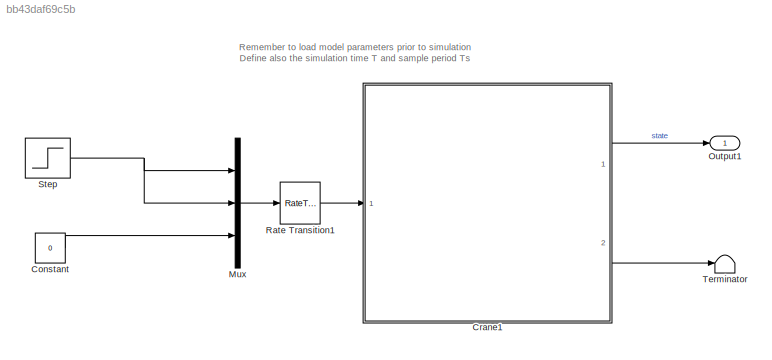
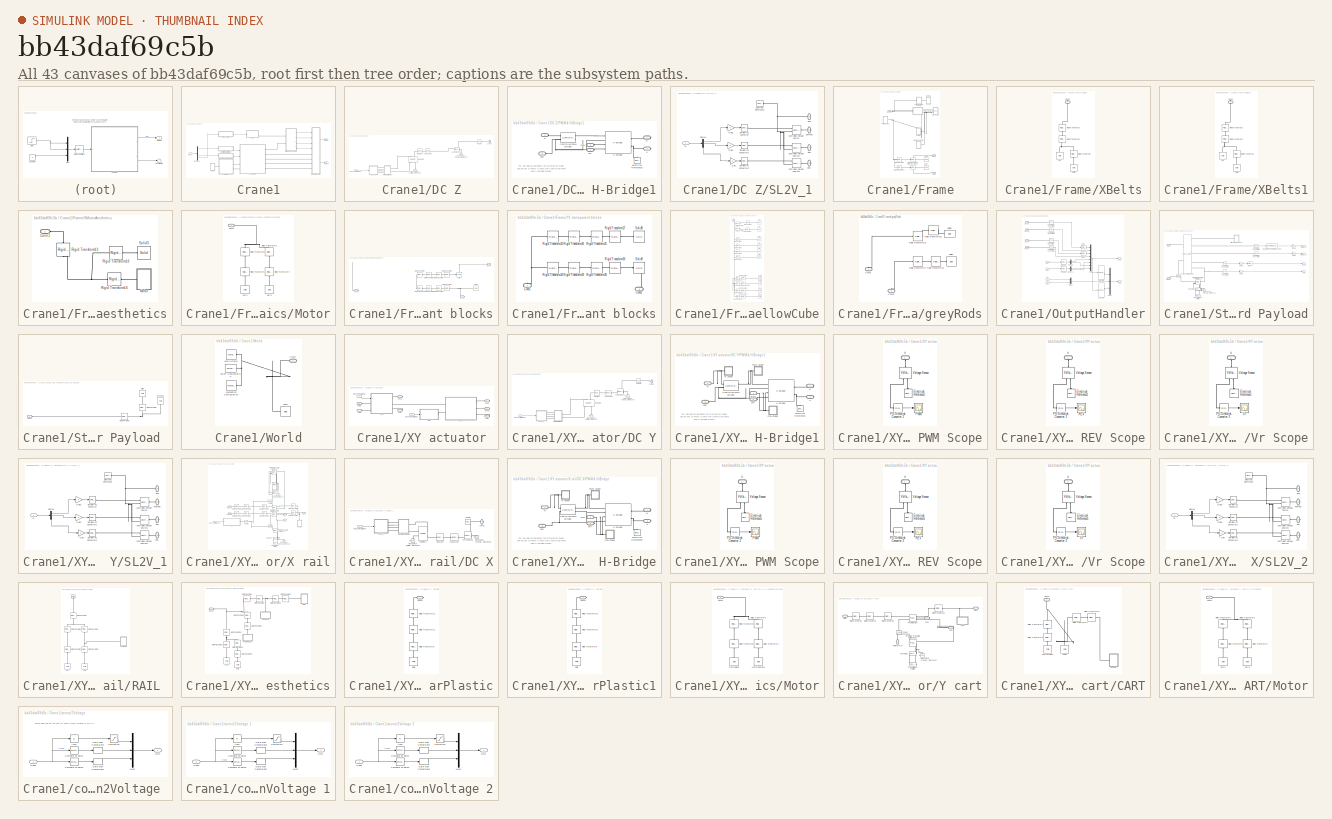
[diagram: thumbnail index - all 43 canvases of the model, root first then tree order]
MODEL slx_bb43daf69c5b
KIND model
CONFIG AbsTol = auto
CONFIG FixedStep = auto
CONFIG MaxStep = auto
CONFIG MinStep = auto
CONFIG RelTol = 1e-3
CONFIG SampleTimeConstraint = Unconstrained
CONFIG Solver = ode15s
CONFIG SolverMode = Auto
CONFIG SolverName = ode15s
CONFIG StartTime = 0.0
CONFIG StopTime = T
BLOCK [Constant] Constant
  Value = 0
BLOCK [SubSystem] Crane1
  Ports = [1, 2]
  RequestExecContextInheritance = off
  Variant = off
BLOCK [SubSystem] Crane1/DC Z
  Ports = [1, 0, 0, 0, 0, 0, 1]
  RequestExecContextInheritance = off
  Variant = off
BLOCK [Reference] Crane1/DC Z/ Lead Screw  REF=fl_lib/Mechanical/Mechanisms/Wheel and Axle
  Ports = [0, 0, 0, 0, 0, 1, 1]
  SourceBlock = fl_lib/Mechanical/Mechanisms/Wheel and Axle
  SourceType = Wheel and Axle
BLOCK [PMIOPort] Crane1/DC Z/Conn1
  Port = 1
  Side = Right
BLOCK [Reference] Crane1/DC Z/DC Motor2  REF=elec_lib/Actuators & Drivers/Rotational Actuators/DC Motor
  Ports = [0, 0, 0, 0, 0, 2, 2]
  SourceBlock = elec_lib/Actuators & Drivers/Rotational Actuators/DC Motor
  SourceType = DC Motor
BLOCK [Inport] Crane1/DC Z/DCZcontrolSignal
  IconDisplay = Port number
BLOCK [Reference] Crane1/DC Z/Force Sensor  REF=fl_lib/Mechanical/Mechanical Sensors/Ideal Force Sensor
  Ports = [0, 0, 0, 0, 0, 1, 2]
  SourceBlock = fl_lib/Mechanical/Mechanical Sensors/Ideal Force Sensor
  SourceType = Ideal Force Sensor
BLOCK [Reference] Crane1/DC Z/Gear Box  REF=fl_lib/Mechanical/Mechanisms/Gear Box
  Ports = [0, 0, 0, 0, 0, 1, 1]
  SourceBlock = fl_lib/Mechanical/Mechanisms/Gear Box
  SourceType = Gear Box
  Tag = Factory Generic
BLOCK [Reference] Crane1/DC Z/Mechanical Rotational Reference1  REF=fl_lib/Mechanical/Rotational Elements/Mechanical
Rotational Reference
  Ports = [0, 0, 0, 0, 0, 1]
  SourceBlock = fl_lib/Mechanical/Rotational Elements/Mechanical\nRotational Reference
  SourceType = Mechanical\nRotational Reference
BLOCK [Reference] Crane1/DC Z/Mechanical Translational Reference4  REF=fl_lib/Mechanical/Translational
Elements/Mechanical
Translational
Reference
  Ports = [0, 0, 0, 0, 0, 1]
  SourceBlock = fl_lib/Mechanical/Translational\nElements/Mechanical\nTranslational\nReference
  SourceType = Mechanical\nTranslational\nReference
BLOCK [Reference] Crane1/DC Z/PS Gain  REF=fl_lib/Physical Signals/Functions/PS Gain
  Ports = [0, 0, 0, 0, 0, 1, 1]
  SourceBlock = fl_lib/Physical Signals/Functions/PS Gain
  SourceType = PS Gain
BLOCK [SubSystem] Crane1/DC Z/PWM & H-Bridge1
  Ports = [0, 0, 0, 0, 0, 4, 2]
  RequestExecContextInheritance = off
  Variant = off
BLOCK [Reference] Crane1/DC Z/PWM & H-Bridge1/Controlled PWM Voltage  REF=elec_lib/Actuators & Drivers/Drivers/Controlled PWM
Voltage
  Ports = [0, 0, 0, 0, 0, 2, 2]
  SourceBlock = elec_lib/Actuators & Drivers/Drivers/Controlled PWM\nVoltage
  SourceType = Controlled PWM\nVoltage
BLOCK [Reference] Crane1/DC Z/PWM & H-Bridge1/Electrical Reference2  REF=fl_lib/Electrical/Electrical Elements/Electrical Reference
  Ports = [0, 0, 0, 0, 0, 1]
  SourceBlock = fl_lib/Electrical/Electrical Elements/Electrical Reference
  SourceType = Electrical Reference
BLOCK [Reference] Crane1/DC Z/PWM & H-Bridge1/H-Bridge  REF=elec_lib/Actuators & Drivers/Drivers/H-Bridge
  Ports = [0, 0, 0, 0, 0, 4, 2]
  SourceBlock = elec_lib/Actuators & Drivers/Drivers/H-Bridge
  SourceType = H-Bridge
BLOCK [PMIOPort] Crane1/DC Z/PWM & H-Bridge1/REV
  Port = 4
  Side = Left
BLOCK [PMIOPort] Crane1/DC Z/PWM & H-Bridge1/V+
  Port = 1
  Side = Right
BLOCK [PMIOPort] Crane1/DC Z/PWM & H-Bridge1/V-
  Port = 2
  Side = Right
BLOCK [PMIOPort] Crane1/DC Z/PWM & H-Bridge1/Vr
  Port = 3
  Side = Left
BLOCK [PMIOPort] Crane1/DC Z/PWM & H-Bridge1/brk 
  Port = 5
  Side = Left
BLOCK [PMIOPort] Crane1/DC Z/PWM & H-Bridge1/gnd 
  Port = 6
  Side = Left
BLOCK [SubSystem] Crane1/DC Z/SL2V_1
  Ports = [1, 0, 0, 0, 0, 0, 4]
  RequestExecContextInheritance = off
  Variant = off
BLOCK [PMIOPort] Crane1/DC Z/SL2V_1/BRK
  Port = 3
  Side = Right
BLOCK [Reference] Crane1/DC Z/SL2V_1/Controlled Voltage Source  REF=fl_lib/Electrical/Electrical Sources/Controlled Voltage
Source
  Ports = [0, 0, 0, 0, 0, 1, 2]
  SourceBlock = fl_lib/Electrical/Electrical Sources/Controlled Voltage\nSource
  SourceType = Controlled Voltage\nSource
BLOCK [Reference] Crane1/DC Z/SL2V_1/Controlled Voltage Source1  REF=fl_lib/Electrical/Electrical Sources/Controlled Voltage
Source
  Ports = [0, 0, 0, 0, 0, 1, 2]
  SourceBlock = fl_lib/Electrical/Electrical Sources/Controlled Voltage\nSource
  SourceType = Controlled Voltage\nSource
BLOCK [Reference] Crane1/DC Z/SL2V_1/Controlled Voltage Source2  REF=fl_lib/Electrical/Electrical Sources/Controlled Voltage
Source
  Ports = [0, 0, 0, 0, 0, 1, 2]
  SourceBlock = fl_lib/Electrical/Electrical Sources/Controlled Voltage\nSource
  SourceType = Controlled Voltage\nSource
BLOCK [Demux] Crane1/DC Z/SL2V_1/Demux
  DisplayOption = bar
  Outputs = 3
  Ports = [1, 3]
BLOCK [Reference] Crane1/DC Z/SL2V_1/Electrical Reference  REF=fl_lib/Electrical/Electrical Elements/Electrical Reference
  Ports = [0, 0, 0, 0, 0, 1]
  SourceBlock = fl_lib/Electrical/Electrical Elements/Electrical Reference
  SourceType = Electrical Reference
BLOCK [Gain] Crane1/DC Z/SL2V_1/Gain
  Gain = 5
  OutDataTypeStr = Inherit: Inherit via internal rule
  ParamDataTypeStr = Inherit: Inherit via internal rule
  SaturateOnIntegerOverflow = off
BLOCK [Gain] Crane1/DC Z/SL2V_1/Gain1
  Gain = 5
  OutDataTypeStr = Inherit: Inherit via internal rule
  ParamDataTypeStr = Inherit: Inherit via internal rule
  SaturateOnIntegerOverflow = off
BLOCK [Gain] Crane1/DC Z/SL2V_1/Gain2
  Gain = 5
  OutDataTypeStr = Inherit: Inherit via internal rule
  ParamDataTypeStr = Inherit: Inherit via internal rule
  SaturateOnIntegerOverflow = off
BLOCK [PMIOPort] Crane1/DC Z/SL2V_1/Rev
  Port = 2
  Side = Right
BLOCK [Inport] Crane1/DC Z/SL2V_1/SL
  IconDisplay = Port number
BLOCK [Reference] Crane1/DC Z/SL2V_1/Simulink-PS Converter  REF=nesl_utility/Simulink-PS
Converter
  Ports = [1, 0, 0, 0, 0, 0, 1]
  SourceBlock = nesl_utility/Simulink-PS\nConverter
  SourceType = Simulink-PS\nConverter
BLOCK [Reference] Crane1/DC Z/SL2V_1/Simulink-PS Converter1  REF=nesl_utility/Simulink-PS
Converter
  Ports = [1, 0, 0, 0, 0, 0, 1]
  SourceBlock = nesl_utility/Simulink-PS\nConverter
  SourceType = Simulink-PS\nConverter
BLOCK [Reference] Crane1/DC Z/SL2V_1/Simulink-PS Converter2  REF=nesl_utility/Simulink-PS
Converter
  Ports = [1, 0, 0, 0, 0, 0, 1]
  SourceBlock = nesl_utility/Simulink-PS\nConverter
  SourceType = Simulink-PS\nConverter
BLOCK [PMIOPort] Crane1/DC Z/SL2V_1/gnd 
  Port = 4
  Side = Right
BLOCK [PMIOPort] Crane1/DC Z/SL2V_1/pwmRef
  Port = 1
  Side = Right
BLOCK [Demux] Crane1/Demux2
  DisplayOption = bar
  Outputs = 3
  Ports = [1, 3]
BLOCK [SubSystem] Crane1/Frame
  Ports = [0, 0, 0, 0, 0, 1, 2]
  RequestExecContextInheritance = off
  Variant = off
BLOCK [PMIOPort] Crane1/Frame/Conn3
  Port = 3
  Side = Left
BLOCK [PMIOPort] Crane1/Frame/LRail
  Port = 2
  Side = Right
BLOCK [PMIOPort] Crane1/Frame/RRail
  Port = 1
  Side = Right
BLOCK [Reference] Crane1/Frame/Rigid Transform10  REF=sm_lib/Frames and
Transforms/Rigid
Transform
  Ports = [0, 0, 0, 0, 0, 1, 1]
  SourceBlock = sm_lib/Frames and\nTransforms/Rigid\nTransform
  SourceType = Rigid\nTransform
BLOCK [Reference] Crane1/Frame/Rigid Transform11  REF=sm_lib/Frames and
Transforms/Rigid
Transform
  Ports = [0, 0, 0, 0, 0, 1, 1]
  SourceBlock = sm_lib/Frames and\nTransforms/Rigid\nTransform
  SourceType = Rigid\nTransform
BLOCK [Reference] Crane1/Frame/Rigid Transform12  REF=sm_lib/Frames and
Transforms/Rigid
Transform
  Ports = [0, 0, 0, 0, 0, 1, 1]
  SourceBlock = sm_lib/Frames and\nTransforms/Rigid\nTransform
  SourceType = Rigid\nTransform
BLOCK [Reference] Crane1/Frame/Rigid Transform9  REF=sm_lib/Frames and
Transforms/Rigid
Transform
  Ports = [0, 0, 0, 0, 0, 1, 1]
  SourceBlock = sm_lib/Frames and\nTransforms/Rigid\nTransform
  SourceType = Rigid\nTransform
BLOCK [Reference] Crane1/Frame/Solid6  REF=sm_lib/Body Elements/Solid
  Ports = [0, 0, 0, 0, 0, 0, 1]
  SourceBlock = sm_lib/Body Elements/Solid
  SourceType = Solid
BLOCK [Reference] Crane1/Frame/Solid7  REF=sm_lib/Body Elements/Solid
  Ports = [0, 0, 0, 0, 0, 0, 1]
  SourceBlock = sm_lib/Body Elements/Solid
  SourceType = Solid
BLOCK [SubSystem] Crane1/Frame/XBelts
  Ports = [0, 0, 0, 0, 0, 0, 1]
  RequestExecContextInheritance = off
  Variant = off
BLOCK [PMIOPort] Crane1/Frame/XBelts/Conn1
  Port = 1
  Side = Right
BLOCK [Reference] Crane1/Frame/XBelts/Rigid Transform14  REF=sm_lib/Frames and
Transforms/Rigid
Transform
  Ports = [0, 0, 0, 0, 0, 1, 1]
  SourceBlock = sm_lib/Frames and\nTransforms/Rigid\nTransform
  SourceType = Rigid\nTransform
BLOCK [Reference] Crane1/Frame/XBelts/Rigid Transform15  REF=sm_lib/Frames and
Transforms/Rigid
Transform
  Ports = [0, 0, 0, 0, 0, 1, 1]
  SourceBlock = sm_lib/Frames and\nTransforms/Rigid\nTransform
  SourceType = Rigid\nTransform
BLOCK [Reference] Crane1/Frame/XBelts/Rigid Transform19  REF=sm_lib/Frames and
Transforms/Rigid
Transform
  Ports = [0, 0, 0, 0, 0, 1, 1]
  SourceBlock = sm_lib/Frames and\nTransforms/Rigid\nTransform
  SourceType = Rigid\nTransform
BLOCK [Reference] Crane1/Frame/XBelts/belt  REF=sm_lib/Body Elements/Solid
  Ports = [0, 0, 0, 0, 0, 0, 1]
  SourceBlock = sm_lib/Body Elements/Solid
  SourceType = Solid
BLOCK [Reference] Crane1/Frame/XBelts/betl2   REF=sm_lib/Body Elements/Solid
  Ports = [0, 0, 0, 0, 0, 0, 1]
  SourceBlock = sm_lib/Body Elements/Solid
  SourceType = Solid
BLOCK [SubSystem] Crane1/Frame/XBelts1
  Ports = [0, 0, 0, 0, 0, 0, 1]
  RequestExecContextInheritance = off
  Variant = off
BLOCK [PMIOPort] Crane1/Frame/XBelts1/Conn1
  Port = 1
  Side = Right
BLOCK [Reference] Crane1/Frame/XBelts1/Rigid Transform14  REF=sm_lib/Frames and
Transforms/Rigid
Transform
  Ports = [0, 0, 0, 0, 0, 1, 1]
  SourceBlock = sm_lib/Frames and\nTransforms/Rigid\nTransform
  SourceType = Rigid\nTransform
BLOCK [Reference] Crane1/Frame/XBelts1/Rigid Transform15  REF=sm_lib/Frames and
Transforms/Rigid
Transform
  Ports = [0, 0, 0, 0, 0, 1, 1]
  SourceBlock = sm_lib/Frames and\nTransforms/Rigid\nTransform
  SourceType = Rigid\nTransform
BLOCK [Reference] Crane1/Frame/XBelts1/Rigid Transform19  REF=sm_lib/Frames and
Transforms/Rigid
Transform
  Ports = [0, 0, 0, 0, 0, 1, 1]
  SourceBlock = sm_lib/Frames and\nTransforms/Rigid\nTransform
  SourceType = Rigid\nTransform
BLOCK [Reference] Crane1/Frame/XBelts1/belt  REF=sm_lib/Body Elements/Solid
  Ports = [0, 0, 0, 0, 0, 0, 1]
  SourceBlock = sm_lib/Body Elements/Solid
  SourceType = Solid
BLOCK [Reference] Crane1/Frame/XBelts1/betl2   REF=sm_lib/Body Elements/Solid
  Ports = [0, 0, 0, 0, 0, 0, 1]
  SourceBlock = sm_lib/Body Elements/Solid
  SourceType = Solid
BLOCK [SubSystem] Crane1/Frame/XMotorAesthetics
  Ports = [0, 0, 0, 0, 0, 1]
  RequestExecContextInheritance = off
  Variant = off
BLOCK [PMIOPort] Crane1/Frame/XMotorAesthetics/Conn1
  Port = 1
  Side = Left
BLOCK [SubSystem] Crane1/Frame/XMotorAesthetics/Motor
  Ports = [0, 0, 0, 0, 0, 1]
  RequestExecContextInheritance = off
  Variant = off
BLOCK [Reference] Crane1/Frame/XMotorAesthetics/Motor/Cart2  REF=sm_lib/Body Elements/Solid
  Ports = [0, 0, 0, 0, 0, 0, 1]
  SourceBlock = sm_lib/Body Elements/Solid
  SourceType = Solid
BLOCK [Reference] Crane1/Frame/XMotorAesthetics/Motor/Cart3  REF=sm_lib/Body Elements/Solid
  Ports = [0, 0, 0, 0, 0, 0, 1]
  SourceBlock = sm_lib/Body Elements/Solid
  SourceType = Solid
BLOCK [PMIOPort] Crane1/Frame/XMotorAesthetics/Motor/Conn1
  Port = 1
  Side = Left
BLOCK [Reference] Crane1/Frame/XMotorAesthetics/Motor/Rigid Transform3  REF=sm_lib/Frames and
Transforms/Rigid
Transform
  Ports = [0, 0, 0, 0, 0, 1, 1]
  SourceBlock = sm_lib/Frames and\nTransforms/Rigid\nTransform
  SourceType = Rigid\nTransform
BLOCK [Reference] Crane1/Frame/XMotorAesthetics/Motor/Rigid Transform4  REF=sm_lib/Frames and
Transforms/Rigid
Transform
  Ports = [0, 0, 0, 0, 0, 1, 1]
  SourceBlock = sm_lib/Frames and\nTransforms/Rigid\nTransform
  SourceType = Rigid\nTransform
BLOCK [Reference] Crane1/Frame/XMotorAesthetics/Motor/Rigid Transform5  REF=sm_lib/Frames and
Transforms/Rigid
Transform
  Ports = [0, 0, 0, 0, 0, 1, 1]
  SourceBlock = sm_lib/Frames and\nTransforms/Rigid\nTransform
  SourceType = Rigid\nTransform
BLOCK [Reference] Crane1/Frame/XMotorAesthetics/Motor/Rigid Transform6  REF=sm_lib/Frames and
Transforms/Rigid
Transform
  Ports = [0, 0, 0, 0, 0, 1, 1]
  SourceBlock = sm_lib/Frames and\nTransforms/Rigid\nTransform
  SourceType = Rigid\nTransform
BLOCK [Reference] Crane1/Frame/XMotorAesthetics/Rigid Transform13  REF=sm_lib/Frames and
Transforms/Rigid
Transform
  Ports = [0, 0, 0, 0, 0, 1, 1]
  SourceBlock = sm_lib/Frames and\nTransforms/Rigid\nTransform
  SourceType = Rigid\nTransform
BLOCK [Reference] Crane1/Frame/XMotorAesthetics/Rigid Transform16  REF=sm_lib/Frames and
Transforms/Rigid
Transform
  Ports = [0, 0, 0, 0, 0, 1, 1]
  SourceBlock = sm_lib/Frames and\nTransforms/Rigid\nTransform
  SourceType = Rigid\nTransform
BLOCK [Reference] Crane1/Frame/XMotorAesthetics/Rigid Transform18  REF=sm_lib/Frames and
Transforms/Rigid
Transform
  Ports = [0, 0, 0, 0, 0, 1, 1]
  SourceBlock = sm_lib/Frames and\nTransforms/Rigid\nTransform
  SourceType = Rigid\nTransform
BLOCK [Reference] Crane1/Frame/XMotorAesthetics/Solid3  REF=sm_lib/Body Elements/Solid
  Ports = [0, 0, 0, 0, 0, 0, 1]
  SourceBlock = sm_lib/Body Elements/Solid
  SourceType = Solid
BLOCK [SubSystem] Crane1/Frame/Y0 trans[parent blocks
  Ports = [0, 0, 0, 0, 0, 1, 2]
  RequestExecContextInheritance = off
  Variant = off
BLOCK [PMIOPort] Crane1/Frame/Y0 trans[parent blocks/Conn1
  Port = 1
  Side = Right
BLOCK [PMIOPort] Crane1/Frame/Y0 trans[parent blocks/Conn2
  Port = 2
  Side = Right
BLOCK [PMIOPort] Crane1/Frame/Y0 trans[parent blocks/Conn4
  Port = 3
  Side = Left
BLOCK [Reference] Crane1/Frame/Y0 trans[parent blocks/Rigid Transform1  REF=sm_lib/Frames and
Transforms/Rigid
Transform
  Ports = [0, 0, 0, 0, 0, 1, 1]
  SourceBlock = sm_lib/Frames and\nTransforms/Rigid\nTransform
  SourceType = Rigid\nTransform
BLOCK [Reference] Crane1/Frame/Y0 trans[parent blocks/Rigid Transform2  REF=sm_lib/Frames and
Transforms/Rigid
Transform
  Ports = [0, 0, 0, 0, 0, 1, 1]
  SourceBlock = sm_lib/Frames and\nTransforms/Rigid\nTransform
  SourceType = Rigid\nTransform
BLOCK [Reference] Crane1/Frame/Y0 trans[parent blocks/Rigid Transform3  REF=sm_lib/Frames and
Transforms/Rigid
Transform
  Ports = [0, 0, 0, 0, 0, 1, 1]
  SourceBlock = sm_lib/Frames and\nTransforms/Rigid\nTransform
  SourceType = Rigid\nTransform
BLOCK [Reference] Crane1/Frame/Y0 trans[parent blocks/Rigid Transform4  REF=sm_lib/Frames and
Transforms/Rigid
Transform
  Ports = [0, 0, 0, 0, 0, 1, 1]
  SourceBlock = sm_lib/Frames and\nTransforms/Rigid\nTransform
  SourceType = Rigid\nTransform
BLOCK [Reference] Crane1/Frame/Y0 trans[parent blocks/Rigid Transform5  REF=sm_lib/Frames and
Transforms/Rigid
Transform
  Ports = [0, 0, 0, 0, 0, 1, 1]
  SourceBlock = sm_lib/Frames and\nTransforms/Rigid\nTransform
  SourceType = Rigid\nTransform
BLOCK [Reference] Crane1/Frame/Y0 trans[parent blocks/Rigid Transform6  REF=sm_lib/Frames and
Transforms/Rigid
Transform
  Ports = [0, 0, 0, 0, 0, 1, 1]
  SourceBlock = sm_lib/Frames and\nTransforms/Rigid\nTransform
  SourceType = Rigid\nTransform
BLOCK [Reference] Crane1/Frame/Y0 trans[parent blocks/Rigid Transform7  REF=sm_lib/Frames and
Transforms/Rigid
Transform
  Ports = [0, 0, 0, 0, 0, 1, 1]
  SourceBlock = sm_lib/Frames and\nTransforms/Rigid\nTransform
  SourceType = Rigid\nTransform
BLOCK [Reference] Crane1/Frame/Y0 trans[parent blocks/Rigid Transform8  REF=sm_lib/Frames and
Transforms/Rigid
Transform
  Ports = [0, 0, 0, 0, 0, 1, 1]
  SourceBlock = sm_lib/Frames and\nTransforms/Rigid\nTransform
  SourceType = Rigid\nTransform
BLOCK [Reference] Crane1/Frame/Y0 trans[parent blocks/Solid1  REF=sm_lib/Body Elements/Solid
  Ports = [0, 0, 0, 0, 0, 0, 1]
  SourceBlock = sm_lib/Body Elements/Solid
  SourceType = Solid
BLOCK [Reference] Crane1/Frame/Y0 trans[parent blocks/Solid2  REF=sm_lib/Body Elements/Solid
  Ports = [0, 0, 0, 0, 0, 0, 1]
  SourceBlock = sm_lib/Body Elements/Solid
  SourceType = Solid
BLOCK [SubSystem] Crane1/Frame/Y1 transparent blocks
  Ports = [0, 0, 0, 0, 0, 1, 1]
  RequestExecContextInheritance = off
  Variant = off
BLOCK [PMIOPort] Crane1/Frame/Y1 transparent blocks/Conn1
  Port = 1
  Side = Left
BLOCK [PMIOPort] Crane1/Frame/Y1 transparent blocks/Conn2
  Port = 2
  Side = Right
BLOCK [Reference] Crane1/Frame/Y1 transparent blocks/Rigid Transform23  REF=sm_lib/Frames and
Transforms/Rigid
Transform
  Ports = [0, 0, 0, 0, 0, 1, 1]
  SourceBlock = sm_lib/Frames and\nTransforms/Rigid\nTransform
  SourceType = Rigid\nTransform
BLOCK [Reference] Crane1/Frame/Y1 transparent blocks/Rigid Transform24  REF=sm_lib/Frames and
Transforms/Rigid
Transform
  Ports = [0, 0, 0, 0, 0, 1, 1]
  SourceBlock = sm_lib/Frames and\nTransforms/Rigid\nTransform
  SourceType = Rigid\nTransform
BLOCK [Reference] Crane1/Frame/Y1 transparent blocks/Rigid Transform25  REF=sm_lib/Frames and
Transforms/Rigid
Transform
  Ports = [0, 0, 0, 0, 0, 1, 1]
  SourceBlock = sm_lib/Frames and\nTransforms/Rigid\nTransform
  SourceType = Rigid\nTransform
BLOCK [Reference] Crane1/Frame/Y1 transparent blocks/Rigid Transform26  REF=sm_lib/Frames and
Transforms/Rigid
Transform
  Ports = [0, 0, 0, 0, 0, 1, 1]
  SourceBlock = sm_lib/Frames and\nTransforms/Rigid\nTransform
  SourceType = Rigid\nTransform
BLOCK [Reference] Crane1/Frame/Y1 transparent blocks/Rigid Transform27  REF=sm_lib/Frames and
Transforms/Rigid
Transform
  Ports = [0, 0, 0, 0, 0, 1, 1]
  SourceBlock = sm_lib/Frames and\nTransforms/Rigid\nTransform
  SourceType = Rigid\nTransform
BLOCK [Reference] Crane1/Frame/Y1 transparent blocks/Rigid Transform28  REF=sm_lib/Frames and
Transforms/Rigid
Transform
  Ports = [0, 0, 0, 0, 0, 1, 1]
  SourceBlock = sm_lib/Frames and\nTransforms/Rigid\nTransform
  SourceType = Rigid\nTransform
BLOCK [Reference] Crane1/Frame/Y1 transparent blocks/Rigid Transform29  REF=sm_lib/Frames and
Transforms/Rigid
Transform
  Ports = [0, 0, 0, 0, 0, 1, 1]
  SourceBlock = sm_lib/Frames and\nTransforms/Rigid\nTransform
  SourceType = Rigid\nTransform
BLOCK [Reference] Crane1/Frame/Y1 transparent blocks/Rigid Transform30  REF=sm_lib/Frames and
Transforms/Rigid
Transform
  Ports = [0, 0, 0, 0, 0, 1, 1]
  SourceBlock = sm_lib/Frames and\nTransforms/Rigid\nTransform
  SourceType = Rigid\nTransform
BLOCK [Reference] Crane1/Frame/Y1 transparent blocks/Solid8  REF=sm_lib/Body Elements/Solid
  Ports = [0, 0, 0, 0, 0, 0, 1]
  SourceBlock = sm_lib/Body Elements/Solid
  SourceType = Solid
BLOCK [Reference] Crane1/Frame/Y1 transparent blocks/Solid9  REF=sm_lib/Body Elements/Solid
  Ports = [0, 0, 0, 0, 0, 0, 1]
  SourceBlock = sm_lib/Body Elements/Solid
  SourceType = Solid
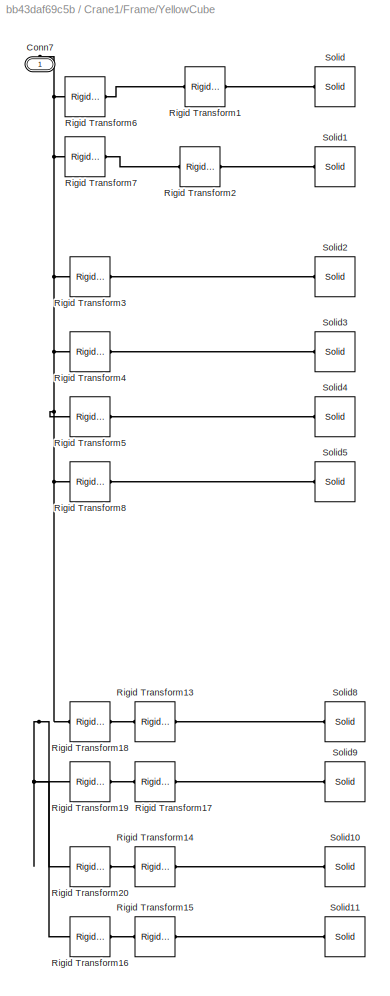
BLOCK [SubSystem] Crane1/Frame/YellowCube
  Ports = [0, 0, 0, 0, 0, 0, 1]
  RequestExecContextInheritance = off
  Variant = off
BLOCK [PMIOPort] Crane1/Frame/YellowCube/Conn7
  Port = 1
  Side = Right
BLOCK [Reference] Crane1/Frame/YellowCube/Rigid Transform1  REF=sm_lib/Frames and
Transforms/Rigid
Transform
  Ports = [0, 0, 0, 0, 0, 1, 1]
  SourceBlock = sm_lib/Frames and\nTransforms/Rigid\nTransform
  SourceType = Rigid\nTransform
BLOCK [Reference] Crane1/Frame/YellowCube/Rigid Transform13  REF=sm_lib/Frames and
Transforms/Rigid
Transform
  Ports = [0, 0, 0, 0, 0, 1, 1]
  SourceBlock = sm_lib/Frames and\nTransforms/Rigid\nTransform
  SourceType = Rigid\nTransform
BLOCK [Reference] Crane1/Frame/YellowCube/Rigid Transform14  REF=sm_lib/Frames and
Transforms/Rigid
Transform
  Ports = [0, 0, 0, 0, 0, 1, 1]
  SourceBlock = sm_lib/Frames and\nTransforms/Rigid\nTransform
  SourceType = Rigid\nTransform
BLOCK [Reference] Crane1/Frame/YellowCube/Rigid Transform15  REF=sm_lib/Frames and
Transforms/Rigid
Transform
  Ports = [0, 0, 0, 0, 0, 1, 1]
  SourceBlock = sm_lib/Frames and\nTransforms/Rigid\nTransform
  SourceType = Rigid\nTransform
BLOCK [Reference] Crane1/Frame/YellowCube/Rigid Transform16  REF=sm_lib/Frames and
Transforms/Rigid
Transform
  Ports = [0, 0, 0, 0, 0, 1, 1]
  SourceBlock = sm_lib/Frames and\nTransforms/Rigid\nTransform
  SourceType = Rigid\nTransform
BLOCK [Reference] Crane1/Frame/YellowCube/Rigid Transform17  REF=sm_lib/Frames and
Transforms/Rigid
Transform
  Ports = [0, 0, 0, 0, 0, 1, 1]
  SourceBlock = sm_lib/Frames and\nTransforms/Rigid\nTransform
  SourceType = Rigid\nTransform
BLOCK [Reference] Crane1/Frame/YellowCube/Rigid Transform18  REF=sm_lib/Frames and
Transforms/Rigid
Transform
  Ports = [0, 0, 0, 0, 0, 1, 1]
  SourceBlock = sm_lib/Frames and\nTransforms/Rigid\nTransform
  SourceType = Rigid\nTransform
BLOCK [Reference] Crane1/Frame/YellowCube/Rigid Transform19  REF=sm_lib/Frames and
Transforms/Rigid
Transform
  Ports = [0, 0, 0, 0, 0, 1, 1]
  SourceBlock = sm_lib/Frames and\nTransforms/Rigid\nTransform
  SourceType = Rigid\nTransform
BLOCK [Reference] Crane1/Frame/YellowCube/Rigid Transform2  REF=sm_lib/Frames and
Transforms/Rigid
Transform
  Ports = [0, 0, 0, 0, 0, 1, 1]
  SourceBlock = sm_lib/Frames and\nTransforms/Rigid\nTransform
  SourceType = Rigid\nTransform
BLOCK [Reference] Crane1/Frame/YellowCube/Rigid Transform20  REF=sm_lib/Frames and
Transforms/Rigid
Transform
  Ports = [0, 0, 0, 0, 0, 1, 1]
  SourceBlock = sm_lib/Frames and\nTransforms/Rigid\nTransform
  SourceType = Rigid\nTransform
BLOCK [Reference] Crane1/Frame/YellowCube/Rigid Transform3  REF=sm_lib/Frames and
Transforms/Rigid
Transform
  Ports = [0, 0, 0, 0, 0, 1, 1]
  SourceBlock = sm_lib/Frames and\nTransforms/Rigid\nTransform
  SourceType = Rigid\nTransform
BLOCK [Reference] Crane1/Frame/YellowCube/Rigid Transform4  REF=sm_lib/Frames and
Transforms/Rigid
Transform
  Ports = [0, 0, 0, 0, 0, 1, 1]
  SourceBlock = sm_lib/Frames and\nTransforms/Rigid\nTransform
  SourceType = Rigid\nTransform
BLOCK [Reference] Crane1/Frame/YellowCube/Rigid Transform5  REF=sm_lib/Frames and
Transforms/Rigid
Transform
  Ports = [0, 0, 0, 0, 0, 1, 1]
  SourceBlock = sm_lib/Frames and\nTransforms/Rigid\nTransform
  SourceType = Rigid\nTransform
BLOCK [Reference] Crane1/Frame/YellowCube/Rigid Transform6  REF=sm_lib/Frames and
Transforms/Rigid
Transform
  Ports = [0, 0, 0, 0, 0, 1, 1]
  SourceBlock = sm_lib/Frames and\nTransforms/Rigid\nTransform
  SourceType = Rigid\nTransform
BLOCK [Reference] Crane1/Frame/YellowCube/Rigid Transform7  REF=sm_lib/Frames and
Transforms/Rigid
Transform
  Ports = [0, 0, 0, 0, 0, 1, 1]
  SourceBlock = sm_lib/Frames and\nTransforms/Rigid\nTransform
  SourceType = Rigid\nTransform
BLOCK [Reference] Crane1/Frame/YellowCube/Rigid Transform8  REF=sm_lib/Frames and
Transforms/Rigid
Transform
  Ports = [0, 0, 0, 0, 0, 1, 1]
  SourceBlock = sm_lib/Frames and\nTransforms/Rigid\nTransform
  SourceType = Rigid\nTransform
BLOCK [Reference] Crane1/Frame/YellowCube/Solid  REF=sm_lib/Body Elements/Solid
  Ports = [0, 0, 0, 0, 0, 0, 1]
  SourceBlock = sm_lib/Body Elements/Solid
  SourceType = Solid
BLOCK [Reference] Crane1/Frame/YellowCube/Solid1  REF=sm_lib/Body Elements/Solid
  Ports = [0, 0, 0, 0, 0, 0, 1]
  SourceBlock = sm_lib/Body Elements/Solid
  SourceType = Solid
BLOCK [Reference] Crane1/Frame/YellowCube/Solid10  REF=sm_lib/Body Elements/Solid
  Ports = [0, 0, 0, 0, 0, 0, 1]
  SourceBlock = sm_lib/Body Elements/Solid
  SourceType = Solid
BLOCK [Reference] Crane1/Frame/YellowCube/Solid11  REF=sm_lib/Body Elements/Solid
  Ports = [0, 0, 0, 0, 0, 0, 1]
  SourceBlock = sm_lib/Body Elements/Solid
  SourceType = Solid
BLOCK [Reference] Crane1/Frame/YellowCube/Solid2  REF=sm_lib/Body Elements/Solid
  Ports = [0, 0, 0, 0, 0, 0, 1]
  SourceBlock = sm_lib/Body Elements/Solid
  SourceType = Solid
BLOCK [Reference] Crane1/Frame/YellowCube/Solid3  REF=sm_lib/Body Elements/Solid
  Ports = [0, 0, 0, 0, 0, 0, 1]
  SourceBlock = sm_lib/Body Elements/Solid
  SourceType = Solid
BLOCK [Reference] Crane1/Frame/YellowCube/Solid4  REF=sm_lib/Body Elements/Solid
  Ports = [0, 0, 0, 0, 0, 0, 1]
  SourceBlock = sm_lib/Body Elements/Solid
  SourceType = Solid
BLOCK [Reference] Crane1/Frame/YellowCube/Solid5  REF=sm_lib/Body Elements/Solid
  Ports = [0, 0, 0, 0, 0, 0, 1]
  SourceBlock = sm_lib/Body Elements/Solid
  SourceType = Solid
BLOCK [Reference] Crane1/Frame/YellowCube/Solid8  REF=sm_lib/Body Elements/Solid
  Ports = [0, 0, 0, 0, 0, 0, 1]
  SourceBlock = sm_lib/Body Elements/Solid
  SourceType = Solid
BLOCK [Reference] Crane1/Frame/YellowCube/Solid9  REF=sm_lib/Body Elements/Solid
  Ports = [0, 0, 0, 0, 0, 0, 1]
  SourceBlock = sm_lib/Body Elements/Solid
  SourceType = Solid
BLOCK [SubSystem] Crane1/Frame/greyRods
  Ports = [0, 0, 0, 0, 0, 2]
  RequestExecContextInheritance = off
  Variant = off
BLOCK [PMIOPort] Crane1/Frame/greyRods/Conn1
  Port = 1
  Side = Left
BLOCK [PMIOPort] Crane1/Frame/greyRods/Conn2
  Port = 2
  Side = Left
BLOCK [Reference] Crane1/Frame/greyRods/Rigid Transform17  REF=sm_lib/Frames and
Transforms/Rigid
Transform
  Ports = [0, 0, 0, 0, 0, 1, 1]
  SourceBlock = sm_lib/Frames and\nTransforms/Rigid\nTransform
  SourceType = Rigid\nTransform
BLOCK [Reference] Crane1/Frame/greyRods/Rigid Transform20  REF=sm_lib/Frames and
Transforms/Rigid
Transform
  Ports = [0, 0, 0, 0, 0, 1, 1]
  SourceBlock = sm_lib/Frames and\nTransforms/Rigid\nTransform
  SourceType = Rigid\nTransform
BLOCK [Reference] Crane1/Frame/greyRods/Rigid Transform21  REF=sm_lib/Frames and
Transforms/Rigid
Transform
  Ports = [0, 0, 0, 0, 0, 1, 1]
  SourceBlock = sm_lib/Frames and\nTransforms/Rigid\nTransform
  SourceType = Rigid\nTransform
BLOCK [Reference] Crane1/Frame/greyRods/Rigid Transform22  REF=sm_lib/Frames and
Transforms/Rigid
Transform
  Ports = [0, 0, 0, 0, 0, 1, 1]
  SourceBlock = sm_lib/Frames and\nTransforms/Rigid\nTransform
  SourceType = Rigid\nTransform
BLOCK [Reference] Crane1/Frame/greyRods/Solid4  REF=sm_lib/Body Elements/Solid
  Ports = [0, 0, 0, 0, 0, 0, 1]
  SourceBlock = sm_lib/Body Elements/Solid
  SourceType = Solid
BLOCK [Reference] Crane1/Frame/greyRods/Solid5  REF=sm_lib/Body Elements/Solid
  Ports = [0, 0, 0, 0, 0, 0, 1]
  SourceBlock = sm_lib/Body Elements/Solid
  SourceType = Solid
BLOCK [Inport] Crane1/Input
  IconDisplay = Port number
BLOCK [SubSystem] Crane1/OutputHandler
  Ports = [4, 2, 0, 0, 0, 4]
  RequestExecContextInheritance = off
  Variant = off
BLOCK [Bias] Crane1/OutputHandler/Bias
  Bias = xZero
  SaturateOnIntegerOverflow = off
BLOCK [Bias] Crane1/OutputHandler/Bias1
  Bias = yZero
  SaturateOnIntegerOverflow = off
BLOCK [PMIOPort] Crane1/OutputHandler/Conn1
  Port = 1
  Side = Left
BLOCK [PMIOPort] Crane1/OutputHandler/Conn2
  Port = 2
  Side = Left
BLOCK [PMIOPort] Crane1/OutputHandler/Conn3
  Port = 3
  Side = Left
BLOCK [PMIOPort] Crane1/OutputHandler/Conn4
  Port = 4
  Side = Left
BLOCK [Demux] Crane1/OutputHandler/Demux
  DisplayOption = bar
  Outputs = 2
  Ports = [1, 2]
BLOCK [Demux] Crane1/OutputHandler/Demux1
  DisplayOption = bar
  Outputs = 2
  Ports = [1, 2]
BLOCK [Inport] Crane1/OutputHandler/In1
  IconDisplay = Port number
BLOCK [Inport] Crane1/OutputHandler/In2
  IconDisplay = Port number
  Port = 2
BLOCK [Inport] Crane1/OutputHandler/In3
  IconDisplay = Port number
  Port = 3
BLOCK [Inport] Crane1/OutputHandler/In4
  IconDisplay = Port number
  Port = 4
BLOCK [Mux] Crane1/OutputHandler/Mux
  DisplayOption = bar
  Inputs = 8
  Ports = [8, 1]
BLOCK [Mux] Crane1/OutputHandler/Mux1
  DisplayOption = bar
  Inputs = 3
  Ports = [3, 1]
BLOCK [Mux] Crane1/OutputHandler/Mux2
  DisplayOption = bar
  Inputs = 2
  Ports = [2, 1]
BLOCK [Outport] Crane1/OutputHandler/Out1
  IconDisplay = Port number
BLOCK [Outport] Crane1/OutputHandler/Out2
  IconDisplay = Port number
  Port = 2
BLOCK [Reference] Crane1/OutputHandler/PS-Simulink Converter  REF=nesl_utility/PS-Simulink
Converter
  Ports = [0, 1, 0, 0, 0, 1]
  SourceBlock = nesl_utility/PS-Simulink\nConverter
  SourceType = PS-Simulink\nConverter
BLOCK [Reference] Crane1/OutputHandler/PS-Simulink Converter1  REF=nesl_utility/PS-Simulink
Converter
  Ports = [0, 1, 0, 0, 0, 1]
  SourceBlock = nesl_utility/PS-Simulink\nConverter
  SourceType = PS-Simulink\nConverter
BLOCK [Reference] Crane1/OutputHandler/PS-Simulink Converter2  REF=nesl_utility/PS-Simulink
Converter
  Ports = [0, 1, 0, 0, 0, 1]
  SourceBlock = nesl_utility/PS-Simulink\nConverter
  SourceType = PS-Simulink\nConverter
BLOCK [Reference] Crane1/OutputHandler/PS-Simulink Converter3  REF=nesl_utility/PS-Simulink
Converter
  Ports = [0, 1, 0, 0, 0, 1]
  SourceBlock = nesl_utility/PS-Simulink\nConverter
  SourceType = PS-Simulink\nConverter
BLOCK [Selector] Crane1/OutputHandler/Selector
  IndexOptions = Index vector (dialog)
  Indices = [2 3]
  InputPortWidth = 3
  OutputSizes = 1
  Ports = [1, 1]
BLOCK [Selector] Crane1/OutputHandler/Selector1
  IndexOptions = Index vector (dialog)
  Indices = [1 2]
  InputPortWidth = 3
  OutputSizes = 1
  Ports = [1, 1]
BLOCK [Selector] Crane1/OutputHandler/Selector2
  IndexOptions = Index vector (dialog)
  Indices = 1:4
  InputPortWidth = 8
  OutputSizes = 1
  Ports = [1, 1]
BLOCK [Selector] Crane1/OutputHandler/Selector3
  IndexOptions = Index vector (dialog)
  Indices = 5:8
  InputPortWidth = 8
  OutputSizes = 1
  Ports = [1, 1]
BLOCK [SubSystem] Crane1/String and Payload
  Ports = [0, 4, 0, 0, 0, 2]
  RequestExecContextInheritance = off
  Variant = off
BLOCK [Bias] Crane1/String and Payload/Bias
  Bias = zZero
  SaturateOnIntegerOverflow = off
BLOCK [PMIOPort] Crane1/String and Payload/Cart
  Port = 2
  Side = Left
BLOCK [Outport] Crane1/String and Payload/Dthetaxyz
  IconDisplay = Port number
  Port = 2
BLOCK [Gain] Crane1/String and Payload/Gain1
  Gain = [1 -1 1]
  OutDataTypeStr = Inherit: Inherit via internal rule
  ParamDataTypeStr = Inherit: Inherit via internal rule
  SaturateOnIntegerOverflow = off
BLOCK [Gain] Crane1/String and Payload/Gain2
  Gain = -1
  OutDataTypeStr = Inherit: Inherit via internal rule
  ParamDataTypeStr = Inherit: Inherit via internal rule
  SaturateOnIntegerOverflow = off
BLOCK [Gain] Crane1/String and Payload/Gain3
  Gain = -1
  OutDataTypeStr = Inherit: Inherit via internal rule
  ParamDataTypeStr = Inherit: Inherit via internal rule
  SaturateOnIntegerOverflow = off
BLOCK [Gain] Crane1/String and Payload/Gain5
  Gain = [1 -1 1]
  OutDataTypeStr = Inherit: Inherit via internal rule
  ParamDataTypeStr = Inherit: Inherit via internal rule
  SaturateOnIntegerOverflow = off
BLOCK [Reference] Crane1/String and Payload/Hard Stop1  REF=fl_lib/Mechanical/Translational
Elements/Translational Hard
Stop
  Ports = [0, 0, 0, 0, 0, 1, 1]
  SourceBlock = fl_lib/Mechanical/Translational\nElements/Translational Hard\nStop
  SourceType = Translational Hard\nStop
BLOCK [Reference] Crane1/String and Payload/Mechanical Translational Reference1  REF=fl_lib/Mechanical/Translational
Elements/Mechanical
Translational
Reference
  Ports = [0, 0, 0, 0, 0, 1]
  SourceBlock = fl_lib/Mechanical/Translational\nElements/Mechanical\nTranslational\nReference
  SourceType = Mechanical\nTranslational\nReference
BLOCK [Reference] Crane1/String and Payload/PS Add  REF=fl_lib/Physical Signals/Functions/PS Add
  Ports = [0, 0, 0, 0, 0, 2, 1]
  SourceBlock = fl_lib/Physical Signals/Functions/PS Add
  SourceType = PS Add
BLOCK [Reference] Crane1/String and Payload/PS-Simulink Converter1  REF=nesl_utility/PS-Simulink
Converter
  Ports = [0, 1, 0, 0, 0, 1]
  SourceBlock = nesl_utility/PS-Simulink\nConverter
  SourceType = PS-Simulink\nConverter
BLOCK [Reference] Crane1/String and Payload/PS-Simulink Converter2  REF=nesl_utility/PS-Simulink
Converter
  Ports = [0, 1, 0, 0, 0, 1]
  SourceBlock = nesl_utility/PS-Simulink\nConverter
  SourceType = PS-Simulink\nConverter
BLOCK [Reference] Crane1/String and Payload/PS-Simulink Converter3  REF=nesl_utility/PS-Simulink
Converter
  Ports = [0, 1, 0, 0, 0, 1]
  SourceBlock = nesl_utility/PS-Simulink\nConverter
  SourceType = PS-Simulink\nConverter
BLOCK [Reference] Crane1/String and Payload/PS-Simulink Converter4  REF=nesl_utility/PS-Simulink
Converter
  Ports = [0, 1, 0, 0, 0, 1]
  SourceBlock = nesl_utility/PS-Simulink\nConverter
  SourceType = PS-Simulink\nConverter
BLOCK [Outport] Crane1/String and Payload/PosZ 
  IconDisplay = Port number
  Port = 3
BLOCK [Reference] Crane1/String and Payload/Prismatic-Translational Interface1  REF=sm_double_wishbone_suspension_lib/Testing
Platform/Prismatic-Translational
Interface
  Ports = [0, 0, 0, 0, 0, 2, 2]
  SourceBlock = sm_double_wishbone_suspension_lib/Testing\nPlatform/Prismatic-Translational\nInterface
  SourceType = SubSystem
BLOCK [Reference] Crane1/String and Payload/Quaternions to Rotation Angles  REF=aerolibtransform2/Quaternions to Rotation Angles
  AttributesFormatString = Rotation Order: %<rotationOrder>
  Ports = [1, 1]
  SourceBlock = aerolibtransform2/Quaternions to Rotation Angles
  SourceType = Quat2Ang
BLOCK [SubSystem] Crane1/String and Payload/String and Payload 
  Ports = [0, 0, 0, 0, 0, 1]
  RequestExecContextInheritance = off
  Variant = off
BLOCK [PMIOPort] Crane1/String and Payload/String and Payload /Conn1
  Port = 1
  Side = Left
BLOCK [Reference] Crane1/String and Payload/String and Payload /Pendulum  REF=sm_lib/Body Elements/Solid
  Ports = [0, 0, 0, 0, 0, 0, 1]
  SourceBlock = sm_lib/Body Elements/Solid
  SourceType = Solid
BLOCK [Reference] Crane1/String and Payload/String and Payload /Rigid Transform1  REF=sm_lib/Frames and
Transforms/Rigid
Transform
  Ports = [0, 0, 0, 0, 0, 1, 1]
  SourceBlock = sm_lib/Frames and\nTransforms/Rigid\nTransform
  SourceType = Rigid\nTransform
BLOCK [Reference] Crane1/String and Payload/String and Payload /Rigid Transform2  REF=sm_lib/Frames and
Transforms/Rigid
Transform
  Ports = [0, 0, 0, 0, 0, 1, 1]
  SourceBlock = sm_lib/Frames and\nTransforms/Rigid\nTransform
  SourceType = Rigid\nTransform
BLOCK [Reference] Crane1/String and Payload/String and Payload /String  REF=sm_lib/Body Elements/Solid
  Ports = [0, 0, 0, 0, 0, 0, 1]
  SourceBlock = sm_lib/Body Elements/Solid
  SourceType = Solid
BLOCK [Reference] Crane1/String and Payload/Telescoping Joint  REF=sm_lib/Joints/Telescoping
Joint
  Ports = [0, 0, 0, 0, 0, 2, 6]
  SourceBlock = sm_lib/Joints/Telescoping\nJoint
  SourceType = Telescoping\nJoint
BLOCK [Reference] Crane1/String and Payload/Translational Friction  REF=fl_lib/Mechanical/Translational
Elements/Translational
Friction
  Ports = [0, 0, 0, 0, 0, 1, 1]
  SourceBlock = fl_lib/Mechanical/Translational\nElements/Translational\nFriction
  SourceType = Translational\nFriction
BLOCK [Outport] Crane1/String and Payload/VelZ
  IconDisplay = Port number
  Port = 4
BLOCK [PMIOPort] Crane1/String and Payload/Zmotor
  Port = 1
  Side = Left
BLOCK [Outport] Crane1/String and Payload/thetaxyz
  IconDisplay = Port number
BLOCK [SubSystem] Crane1/World
  Ports = [0, 0, 0, 0, 0, 0, 1]
  RequestExecContextInheritance = off
  Variant = off
BLOCK [PMIOPort] Crane1/World/Conn1
  Port = 1
  Side = Right
BLOCK [Reference] Crane1/World/Mechanism Configuration  REF=sm_lib/Utilities/Mechanism
Configuration
  Ports = [0, 0, 0, 0, 0, 0, 1]
  SourceBlock = sm_lib/Utilities/Mechanism\nConfiguration
  SourceType = Mechanism\nConfiguration
BLOCK [Reference] Crane1/World/Solver Configuration  REF=nesl_utility/Solver
Configuration
  Ports = [0, 0, 0, 0, 0, 0, 1]
  SourceBlock = nesl_utility/Solver\nConfiguration
  SourceType = Solver\nConfiguration
BLOCK [Reference] Crane1/World/World Frame  REF=sm_lib/Frames and
Transforms/World Frame
  Ports = [0, 0, 0, 0, 0, 0, 1]
  SourceBlock = sm_lib/Frames and\nTransforms/World Frame
  SourceType = World Frame
BLOCK [Reference] Crane1/World/base  REF=sm_lib/Body Elements/Solid
  Ports = [0, 0, 0, 0, 0, 0, 1]
  SourceBlock = sm_lib/Body Elements/Solid
  SourceType = Solid
BLOCK [SubSystem] Crane1/XY actuator
  Ports = [2, 0, 0, 0, 0, 2, 5]
  RequestExecContextInheritance = off
  Variant = off
BLOCK [PMIOPort] Crane1/XY actuator/Conn5
  Port = 1
  Side = Right
BLOCK [SubSystem] Crane1/XY actuator/DC Y
  Ports = [1, 0, 0, 0, 0, 0, 1]
  RequestExecContextInheritance = off
  Variant = off
BLOCK [Reference] Crane1/XY actuator/DC Y/ Lead Screw  REF=fl_lib/Mechanical/Mechanisms/Wheel and Axle
  Ports = [0, 0, 0, 0, 0, 1, 1]
  SourceBlock = fl_lib/Mechanical/Mechanisms/Wheel and Axle
  SourceType = Wheel and Axle
BLOCK [PMIOPort] Crane1/XY actuator/DC Y/Conn1
  Port = 1
  Side = Right
BLOCK [Reference] Crane1/XY actuator/DC Y/DC Motor2  REF=elec_lib/Actuators & Drivers/Rotational Actuators/DC Motor
  Ports = [0, 0, 0, 0, 0, 2, 2]
  SourceBlock = elec_lib/Actuators & Drivers/Rotational Actuators/DC Motor
  SourceType = DC Motor
BLOCK [Inport] Crane1/XY actuator/DC Y/DCYcontrolSignal
  IconDisplay = Port number
BLOCK [Reference] Crane1/XY actuator/DC Y/Force Sensor  REF=fl_lib/Mechanical/Mechanical Sensors/Ideal Force Sensor
  Ports = [0, 0, 0, 0, 0, 1, 2]
  SourceBlock = fl_lib/Mechanical/Mechanical Sensors/Ideal Force Sensor
  SourceType = Ideal Force Sensor
BLOCK [Reference] Crane1/XY actuator/DC Y/Gear Box  REF=fl_lib/Mechanical/Mechanisms/Gear Box
  Ports = [0, 0, 0, 0, 0, 1, 1]
  SourceBlock = fl_lib/Mechanical/Mechanisms/Gear Box
  SourceType = Gear Box
  Tag = Factory Generic
BLOCK [Reference] Crane1/XY actuator/DC Y/Mechanical Rotational Reference1  REF=fl_lib/Mechanical/Rotational Elements/Mechanical
Rotational Reference
  Ports = [0, 0, 0, 0, 0, 1]
  SourceBlock = fl_lib/Mechanical/Rotational Elements/Mechanical\nRotational Reference
  SourceType = Mechanical\nRotational Reference
BLOCK [Reference] Crane1/XY actuator/DC Y/Mechanical Translational Reference4  REF=fl_lib/Mechanical/Translational
Elements/Mechanical
Translational
Reference
  Ports = [0, 0, 0, 0, 0, 1]
  SourceBlock = fl_lib/Mechanical/Translational\nElements/Mechanical\nTranslational\nReference
  SourceType = Mechanical\nTranslational\nReference
BLOCK [Reference] Crane1/XY actuator/DC Y/PS Gain  REF=fl_lib/Physical Signals/Functions/PS Gain
  Ports = [0, 0, 0, 0, 0, 1, 1]
  SourceBlock = fl_lib/Physical Signals/Functions/PS Gain
  SourceType = PS Gain
BLOCK [SubSystem] Crane1/XY actuator/DC Y/PWM & H-Bridge1
  Ports = [0, 0, 0, 0, 0, 4, 2]
  RequestExecContextInheritance = off
  Variant = off
BLOCK [Reference] Crane1/XY actuator/DC Y/PWM & H-Bridge1/Controlled PWM Voltage  REF=elec_lib/Actuators & Drivers/Drivers/Controlled PWM
Voltage
  Ports = [0, 0, 0, 0, 0, 2, 2]
  SourceBlock = elec_lib/Actuators & Drivers/Drivers/Controlled PWM\nVoltage
  SourceType = Controlled PWM\nVoltage
BLOCK [Reference] Crane1/XY actuator/DC Y/PWM & H-Bridge1/Electrical Reference2  REF=fl_lib/Electrical/Electrical Elements/Electrical Reference
  Ports = [0, 0, 0, 0, 0, 1]
  SourceBlock = fl_lib/Electrical/Electrical Elements/Electrical Reference
  SourceType = Electrical Reference
BLOCK [Reference] Crane1/XY actuator/DC Y/PWM & H-Bridge1/H-Bridge  REF=elec_lib/Actuators & Drivers/Drivers/H-Bridge
  Ports = [0, 0, 0, 0, 0, 4, 2]
  SourceBlock = elec_lib/Actuators & Drivers/Drivers/H-Bridge
  SourceType = H-Bridge
BLOCK [SubSystem] Crane1/XY actuator/DC Y/PWM & H-Bridge1/PWM Scope
  Commented = on
  Ports = [0, 0, 0, 0, 0, 1]
  RequestExecContextInheritance = off
  Variant = off
BLOCK [Reference] Crane1/XY actuator/DC Y/PWM & H-Bridge1/PWM Scope/Electrical Reference1  REF=fl_lib/Electrical/Electrical Elements/Electrical Reference
  Ports = [0, 0, 0, 0, 0, 1]
  SourceBlock = fl_lib/Electrical/Electrical Elements/Electrical Reference
  SourceType = Electrical Reference
BLOCK [Reference] Crane1/XY actuator/DC Y/PWM & H-Bridge1/PWM Scope/PS-Simulink Converter 2  REF=nesl_utility/PS-Simulink
Converter
  Ports = [0, 1, 0, 0, 0, 1]
  SourceBlock = nesl_utility/PS-Simulink\nConverter
  SourceType = PS-Simulink\nConverter
BLOCK [Scope] Crane1/XY actuator/DC Y/PWM & H-Bridge1/PWM Scope/PWM
  Ports = [1]
  ScopeSpecificationString = C++SS(StrPVP('Location','[398, 140, 722, 379]'),StrPVP('Open','off'),MxPVP('AxesTitles',24,'struct(''axes1'',''%<SignalLabel>'')'),MxPVP('ScopeGraphics',28,'struct(''FigureColor'',''[0.5 0.5 0.5]'',''AxesColor'',''[0 0 0]'',''AxesTickColor'',''[1 1 1]'',''LineColors'',''[1 1 0;1 0 1;0 1 1;1 0 0;0 1 0;0 0 1]'',''LineStyles'',''-|-|-|-|-|-'',''LineWidths'',''[0.5 0.5 0.5 0.5 0.5 0.5]'',''MarkerStyle...<+296ch>
BLOCK [Reference] Crane1/XY actuator/DC Y/PWM & H-Bridge1/PWM Scope/Voltage Sensor  REF=fl_lib/Electrical/Electrical Sensors/Voltage Sensor
  Ports = [0, 0, 0, 0, 0, 1, 2]
  SourceBlock = fl_lib/Electrical/Electrical Sensors/Voltage Sensor
  SourceType = Voltage Sensor
BLOCK [PMIOPort] Crane1/XY actuator/DC Y/PWM & H-Bridge1/PWM Scope/u
  Port = 1
  Side = Left
BLOCK [PMIOPort] Crane1/XY actuator/DC Y/PWM & H-Bridge1/REV
  Port = 4
  Side = Left
BLOCK [SubSystem] Crane1/XY actuator/DC Y/PWM & H-Bridge1/REV Scope
  Commented = on
  Ports = [0, 0, 0, 0, 0, 1]
  RequestExecContextInheritance = off
  Variant = off
BLOCK [Reference] Crane1/XY actuator/DC Y/PWM & H-Bridge1/REV Scope/Electrical Reference1  REF=fl_lib/Electrical/Electrical Elements/Electrical Reference
  Ports = [0, 0, 0, 0, 0, 1]
  SourceBlock = fl_lib/Electrical/Electrical Elements/Electrical Reference
  SourceType = Electrical Reference
BLOCK [Reference] Crane1/XY actuator/DC Y/PWM & H-Bridge1/REV Scope/PS-Simulink Converter 2  REF=nesl_utility/PS-Simulink
Converter
  Ports = [0, 1, 0, 0, 0, 1]
  SourceBlock = nesl_utility/PS-Simulink\nConverter
  SourceType = PS-Simulink\nConverter
BLOCK [Scope] Crane1/XY actuator/DC Y/PWM & H-Bridge1/REV Scope/REV
  Ports = [1]
  ScopeSpecificationString = C++SS(StrPVP('Location','[197, 372, 521, 611]'),StrPVP('Open','off'),MxPVP('AxesTitles',24,'struct(''axes1'',''%<SignalLabel>'')'),StrPVP('YMin','-1'),StrPVP('YMax','6'),StrPVP('SaveName','ScopeData6'),StrPVP('DataFormat','StructureWithTime'),StrPVP('LimitDataPoints','off'),StrPVP('BlockParamSampleTime','0'),StrPVP('Decimation','1'),StrPVP('BlockParamSampleInput','off'))
BLOCK [Reference] Crane1/XY actuator/DC Y/PWM & H-Bridge1/REV Scope/Voltage Sensor  REF=fl_lib/Electrical/Electrical Sensors/Voltage Sensor
  Ports = [0, 0, 0, 0, 0, 1, 2]
  SourceBlock = fl_lib/Electrical/Electrical Sensors/Voltage Sensor
  SourceType = Voltage Sensor
BLOCK [PMIOPort] Crane1/XY actuator/DC Y/PWM & H-Bridge1/REV Scope/u
  Port = 1
  Side = Left
BLOCK [PMIOPort] Crane1/XY actuator/DC Y/PWM & H-Bridge1/V+
  Port = 1
  Side = Right
BLOCK [PMIOPort] Crane1/XY actuator/DC Y/PWM & H-Bridge1/V-
  Port = 2
  Side = Right
BLOCK [PMIOPort] Crane1/XY actuator/DC Y/PWM & H-Bridge1/Vr
  Port = 3
  Side = Left
BLOCK [SubSystem] Crane1/XY actuator/DC Y/PWM & H-Bridge1/Vr Scope
  Commented = on
  Ports = [0, 0, 0, 0, 0, 1]
  RequestExecContextInheritance = off
  Variant = off
BLOCK [Reference] Crane1/XY actuator/DC Y/PWM & H-Bridge1/Vr Scope/Electrical Reference1  REF=fl_lib/Electrical/Electrical Elements/Electrical Reference
  Ports = [0, 0, 0, 0, 0, 1]
  SourceBlock = fl_lib/Electrical/Electrical Elements/Electrical Reference
  SourceType = Electrical Reference
BLOCK [Reference] Crane1/XY actuator/DC Y/PWM & H-Bridge1/Vr Scope/PS-Simulink Converter 2  REF=nesl_utility/PS-Simulink
Converter
  Ports = [0, 1, 0, 0, 0, 1]
  SourceBlock = nesl_utility/PS-Simulink\nConverter
  SourceType = PS-Simulink\nConverter
BLOCK [Reference] Crane1/XY actuator/DC Y/PWM & H-Bridge1/Vr Scope/Voltage Sensor  REF=fl_lib/Electrical/Electrical Sensors/Voltage Sensor
  Ports = [0, 0, 0, 0, 0, 1, 2]
  SourceBlock = fl_lib/Electrical/Electrical Sensors/Voltage Sensor
  SourceType = Voltage Sensor
BLOCK [Scope] Crane1/XY actuator/DC Y/PWM & H-Bridge1/Vr Scope/Vr
  Ports = [1]
  ScopeSpecificationString = C++SS(StrPVP('Location','[398, 84, 722, 323]'),StrPVP('Open','off'),MxPVP('AxesTitles',24,'struct(''axes1'',''%<SignalLabel>'')'),MxPVP('ScopeGraphics',28,'struct(''FigureColor'',''[0.5 0.5 0.5]'',''AxesColor'',''[0 0 0]'',''AxesTickColor'',''[1 1 1]'',''LineColors'',''[1 1 0;1 0 1;0 1 1;1 0 0;0 1 0;0 0 1]'',''LineStyles'',''-|-|-|-|-|-'',''LineWidths'',''[0.5 0.5 0.5 0.5 0.5 0.5]'',''MarkerStyles...<+282ch>
BLOCK [PMIOPort] Crane1/XY actuator/DC Y/PWM & H-Bridge1/Vr Scope/u
  Port = 1
  Side = Left
BLOCK [PMIOPort] Crane1/XY actuator/DC Y/PWM & H-Bridge1/brk 
  Port = 5
  Side = Left
BLOCK [PMIOPort] Crane1/XY actuator/DC Y/PWM & H-Bridge1/gnd 
  Port = 6
  Side = Left
BLOCK [SubSystem] Crane1/XY actuator/DC Y/SL2V_1
  Ports = [1, 0, 0, 0, 0, 0, 4]
  RequestExecContextInheritance = off
  Variant = off
BLOCK [PMIOPort] Crane1/XY actuator/DC Y/SL2V_1/BRK
  Port = 3
  Side = Right
BLOCK [Reference] Crane1/XY actuator/DC Y/SL2V_1/Controlled Voltage Source  REF=fl_lib/Electrical/Electrical Sources/Controlled Voltage
Source
  Ports = [0, 0, 0, 0, 0, 1, 2]
  SourceBlock = fl_lib/Electrical/Electrical Sources/Controlled Voltage\nSource
  SourceType = Controlled Voltage\nSource
BLOCK [Reference] Crane1/XY actuator/DC Y/SL2V_1/Controlled Voltage Source1  REF=fl_lib/Electrical/Electrical Sources/Controlled Voltage
Source
  Ports = [0, 0, 0, 0, 0, 1, 2]
  SourceBlock = fl_lib/Electrical/Electrical Sources/Controlled Voltage\nSource
  SourceType = Controlled Voltage\nSource
BLOCK [Reference] Crane1/XY actuator/DC Y/SL2V_1/Controlled Voltage Source2  REF=fl_lib/Electrical/Electrical Sources/Controlled Voltage
Source
  Ports = [0, 0, 0, 0, 0, 1, 2]
  SourceBlock = fl_lib/Electrical/Electrical Sources/Controlled Voltage\nSource
  SourceType = Controlled Voltage\nSource
BLOCK [Demux] Crane1/XY actuator/DC Y/SL2V_1/Demux
  DisplayOption = bar
  Outputs = 3
  Ports = [1, 3]
BLOCK [Reference] Crane1/XY actuator/DC Y/SL2V_1/Electrical Reference  REF=fl_lib/Electrical/Electrical Elements/Electrical Reference
  Ports = [0, 0, 0, 0, 0, 1]
  SourceBlock = fl_lib/Electrical/Electrical Elements/Electrical Reference
  SourceType = Electrical Reference
BLOCK [Gain] Crane1/XY actuator/DC Y/SL2V_1/Gain
  Gain = 5
  OutDataTypeStr = Inherit: Inherit via internal rule
  ParamDataTypeStr = Inherit: Inherit via internal rule
  SaturateOnIntegerOverflow = off
BLOCK [Gain] Crane1/XY actuator/DC Y/SL2V_1/Gain1
  Gain = 5
  OutDataTypeStr = Inherit: Inherit via internal rule
  ParamDataTypeStr = Inherit: Inherit via internal rule
  SaturateOnIntegerOverflow = off
BLOCK [Gain] Crane1/XY actuator/DC Y/SL2V_1/Gain2
  Gain = 5
  OutDataTypeStr = Inherit: Inherit via internal rule
  ParamDataTypeStr = Inherit: Inherit via internal rule
  SaturateOnIntegerOverflow = off
BLOCK [PMIOPort] Crane1/XY actuator/DC Y/SL2V_1/Rev
  Port = 2
  Side = Right
BLOCK [Inport] Crane1/XY actuator/DC Y/SL2V_1/SL
  IconDisplay = Port number
BLOCK [Reference] Crane1/XY actuator/DC Y/SL2V_1/Simulink-PS Converter  REF=nesl_utility/Simulink-PS
Converter
  Ports = [1, 0, 0, 0, 0, 0, 1]
  SourceBlock = nesl_utility/Simulink-PS\nConverter
  SourceType = Simulink-PS\nConverter
BLOCK [Reference] Crane1/XY actuator/DC Y/SL2V_1/Simulink-PS Converter1  REF=nesl_utility/Simulink-PS
Converter
  Ports = [1, 0, 0, 0, 0, 0, 1]
  SourceBlock = nesl_utility/Simulink-PS\nConverter
  SourceType = Simulink-PS\nConverter
BLOCK [Reference] Crane1/XY actuator/DC Y/SL2V_1/Simulink-PS Converter2  REF=nesl_utility/Simulink-PS
Converter
  Ports = [1, 0, 0, 0, 0, 0, 1]
  SourceBlock = nesl_utility/Simulink-PS\nConverter
  SourceType = Simulink-PS\nConverter
BLOCK [PMIOPort] Crane1/XY actuator/DC Y/SL2V_1/gnd 
  Port = 4
  Side = Right
BLOCK [PMIOPort] Crane1/XY actuator/DC Y/SL2V_1/pwmRef
  Port = 1
  Side = Right
BLOCK [Inport] Crane1/XY actuator/DCXcontrolSignal
  IconDisplay = Port number
BLOCK [Inport] Crane1/XY actuator/DCYcontrolSignal
  IconDisplay = Port number
  Port = 2
BLOCK [PMIOPort] Crane1/XY actuator/LRail
  Port = 7
  Side = Left
BLOCK [PMIOPort] Crane1/XY actuator/RRail
  Port = 6
  Side = Left
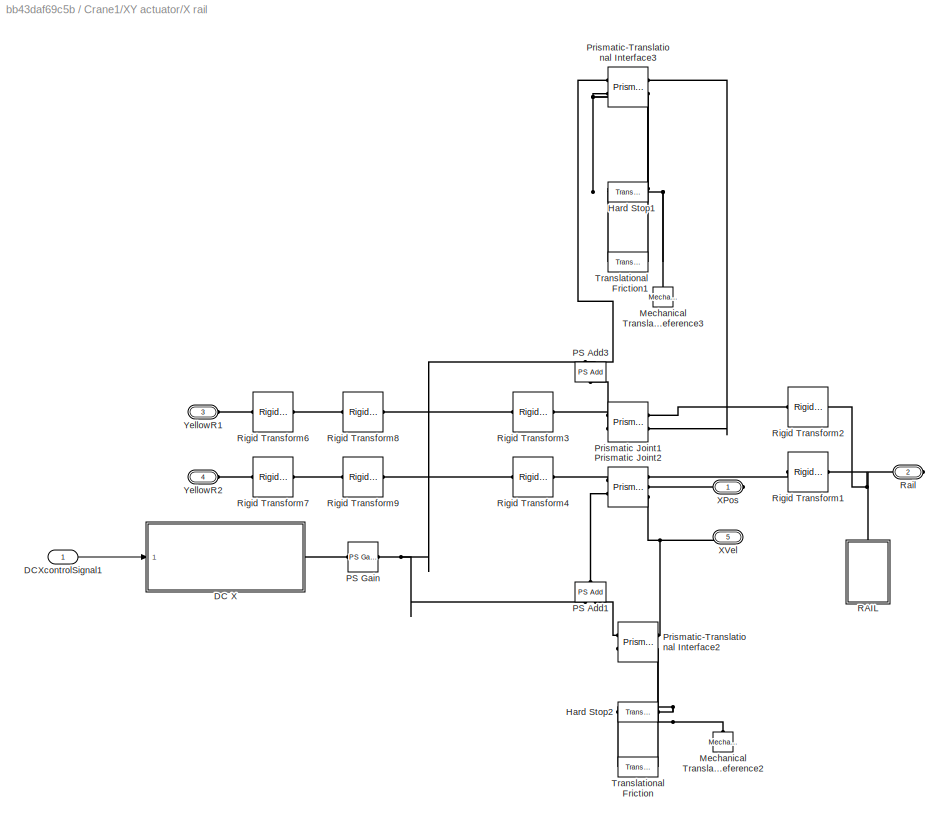
BLOCK [SubSystem] Crane1/XY actuator/X rail
  Ports = [1, 0, 0, 0, 0, 2, 3]
  RequestExecContextInheritance = off
  Variant = off
BLOCK [SubSystem] Crane1/XY actuator/X rail/DC X
  Ports = [1, 0, 0, 0, 0, 0, 1]
  RequestExecContextInheritance = off
  Variant = off
BLOCK [Reference] Crane1/XY actuator/X rail/DC X/ Lead Screw  REF=fl_lib/Mechanical/Mechanisms/Wheel and Axle
  Ports = [0, 0, 0, 0, 0, 1, 1]
  SourceBlock = fl_lib/Mechanical/Mechanisms/Wheel and Axle
  SourceType = Wheel and Axle
BLOCK [PMIOPort] Crane1/XY actuator/X rail/DC X/Conn1
  Port = 1
  Side = Right
BLOCK [Reference] Crane1/XY actuator/X rail/DC X/DC Motor2  REF=elec_lib/Actuators & Drivers/Rotational Actuators/DC Motor
  Ports = [0, 0, 0, 0, 0, 2, 2]
  SourceBlock = elec_lib/Actuators & Drivers/Rotational Actuators/DC Motor
  SourceType = DC Motor
BLOCK [Inport] Crane1/XY actuator/X rail/DC X/DCYcontrolSignal
  IconDisplay = Port number
BLOCK [Reference] Crane1/XY actuator/X rail/DC X/Force Sensor  REF=fl_lib/Mechanical/Mechanical Sensors/Ideal Force Sensor
  Ports = [0, 0, 0, 0, 0, 1, 2]
  SourceBlock = fl_lib/Mechanical/Mechanical Sensors/Ideal Force Sensor
  SourceType = Ideal Force Sensor
BLOCK [Reference] Crane1/XY actuator/X rail/DC X/Gear Box  REF=fl_lib/Mechanical/Mechanisms/Gear Box
  Ports = [0, 0, 0, 0, 0, 1, 1]
  SourceBlock = fl_lib/Mechanical/Mechanisms/Gear Box
  SourceType = Gear Box
  Tag = Factory Generic
BLOCK [Reference] Crane1/XY actuator/X rail/DC X/Mechanical Rotational Reference1  REF=fl_lib/Mechanical/Rotational Elements/Mechanical
Rotational Reference
  Ports = [0, 0, 0, 0, 0, 1]
  SourceBlock = fl_lib/Mechanical/Rotational Elements/Mechanical\nRotational Reference
  SourceType = Mechanical\nRotational Reference
BLOCK [Reference] Crane1/XY actuator/X rail/DC X/Mechanical Translational Reference4  REF=fl_lib/Mechanical/Translational
Elements/Mechanical
Translational
Reference
  Ports = [0, 0, 0, 0, 0, 1]
  SourceBlock = fl_lib/Mechanical/Translational\nElements/Mechanical\nTranslational\nReference
  SourceType = Mechanical\nTranslational\nReference
BLOCK [Reference] Crane1/XY actuator/X rail/DC X/PS Gain  REF=fl_lib/Physical Signals/Functions/PS Gain
  Ports = [0, 0, 0, 0, 0, 1, 1]
  SourceBlock = fl_lib/Physical Signals/Functions/PS Gain
  SourceType = PS Gain
BLOCK [SubSystem] Crane1/XY actuator/X rail/DC X/PWM & H-Bridge
  Ports = [0, 0, 0, 0, 0, 4, 2]
  RequestExecContextInheritance = off
  Variant = off
BLOCK [Reference] Crane1/XY actuator/X rail/DC X/PWM & H-Bridge/Controlled PWM Voltage  REF=elec_lib/Actuators & Drivers/Drivers/Controlled PWM
Voltage
  Ports = [0, 0, 0, 0, 0, 2, 2]
  SourceBlock = elec_lib/Actuators & Drivers/Drivers/Controlled PWM\nVoltage
  SourceType = Controlled PWM\nVoltage
BLOCK [Reference] Crane1/XY actuator/X rail/DC X/PWM & H-Bridge/Electrical Reference2  REF=fl_lib/Electrical/Electrical Elements/Electrical Reference
  Ports = [0, 0, 0, 0, 0, 1]
  SourceBlock = fl_lib/Electrical/Electrical Elements/Electrical Reference
  SourceType = Electrical Reference
BLOCK [Reference] Crane1/XY actuator/X rail/DC X/PWM & H-Bridge/H-Bridge  REF=elec_lib/Actuators & Drivers/Drivers/H-Bridge
  Ports = [0, 0, 0, 0, 0, 4, 2]
  SourceBlock = elec_lib/Actuators & Drivers/Drivers/H-Bridge
  SourceType = H-Bridge
BLOCK [SubSystem] Crane1/XY actuator/X rail/DC X/PWM & H-Bridge/PWM Scope
  Ports = [0, 0, 0, 0, 0, 1]
  RequestExecContextInheritance = off
  Variant = off
BLOCK [Reference] Crane1/XY actuator/X rail/DC X/PWM & H-Bridge/PWM Scope/Electrical Reference1  REF=fl_lib/Electrical/Electrical Elements/Electrical Reference
  Ports = [0, 0, 0, 0, 0, 1]
  SourceBlock = fl_lib/Electrical/Electrical Elements/Electrical Reference
  SourceType = Electrical Reference
BLOCK [Reference] Crane1/XY actuator/X rail/DC X/PWM & H-Bridge/PWM Scope/PS-Simulink Converter 2  REF=nesl_utility/PS-Simulink
Converter
  Ports = [0, 1, 0, 0, 0, 1]
  SourceBlock = nesl_utility/PS-Simulink\nConverter
  SourceType = PS-Simulink\nConverter
BLOCK [Scope] Crane1/XY actuator/X rail/DC X/PWM & H-Bridge/PWM Scope/PWM
  Ports = [1]
  ScopeSpecificationString = Simulink.scopes.TimeScopeBlockCfg('CurrentConfiguration', extmgr.ConfigurationSet(extmgr.Configuration('Core','General UI',true),extmgr.Configuration('Core','Source UI',true),extmgr.Configuration('Sources','WiredSimulink',true,'DataLoggingVariableName','ScopeData6','DataLoggingSaveFormat','StructureWithTime','DataLoggingDecimation','1','DataLoggingDecimateData',true),extmgr.Configuration('Visuals'...<+1594ch>
BLOCK [Reference] Crane1/XY actuator/X rail/DC X/PWM & H-Bridge/PWM Scope/Voltage Sensor  REF=fl_lib/Electrical/Electrical Sensors/Voltage Sensor
  Ports = [0, 0, 0, 0, 0, 1, 2]
  SourceBlock = fl_lib/Electrical/Electrical Sensors/Voltage Sensor
  SourceType = Voltage Sensor
BLOCK [PMIOPort] Crane1/XY actuator/X rail/DC X/PWM & H-Bridge/PWM Scope/u
  Port = 1
  Side = Left
BLOCK [PMIOPort] Crane1/XY actuator/X rail/DC X/PWM & H-Bridge/REV
  Port = 4
  Side = Left
BLOCK [SubSystem] Crane1/XY actuator/X rail/DC X/PWM & H-Bridge/REV Scope
  Commented = on
  Ports = [0, 0, 0, 0, 0, 1]
  RequestExecContextInheritance = off
  Variant = off
BLOCK [Reference] Crane1/XY actuator/X rail/DC X/PWM & H-Bridge/REV Scope/Electrical Reference1  REF=fl_lib/Electrical/Electrical Elements/Electrical Reference
  Ports = [0, 0, 0, 0, 0, 1]
  SourceBlock = fl_lib/Electrical/Electrical Elements/Electrical Reference
  SourceType = Electrical Reference
BLOCK [Reference] Crane1/XY actuator/X rail/DC X/PWM & H-Bridge/REV Scope/PS-Simulink Converter 2  REF=nesl_utility/PS-Simulink
Converter
  Ports = [0, 1, 0, 0, 0, 1]
  SourceBlock = nesl_utility/PS-Simulink\nConverter
  SourceType = PS-Simulink\nConverter
BLOCK [Scope] Crane1/XY actuator/X rail/DC X/PWM & H-Bridge/REV Scope/REV
  Ports = [1]
  ScopeSpecificationString = C++SS(StrPVP('Location','[197, 372, 521, 611]'),StrPVP('Open','off'),MxPVP('AxesTitles',24,'struct(''axes1'',''%<SignalLabel>'')'),StrPVP('YMin','-1'),StrPVP('YMax','6'),StrPVP('SaveName','ScopeData6'),StrPVP('DataFormat','StructureWithTime'),StrPVP('LimitDataPoints','off'),StrPVP('BlockParamSampleTime','0'),StrPVP('Decimation','1'),StrPVP('BlockParamSampleInput','off'))
BLOCK [Reference] Crane1/XY actuator/X rail/DC X/PWM & H-Bridge/REV Scope/Voltage Sensor  REF=fl_lib/Electrical/Electrical Sensors/Voltage Sensor
  Ports = [0, 0, 0, 0, 0, 1, 2]
  SourceBlock = fl_lib/Electrical/Electrical Sensors/Voltage Sensor
  SourceType = Voltage Sensor
BLOCK [PMIOPort] Crane1/XY actuator/X rail/DC X/PWM & H-Bridge/REV Scope/u
  Port = 1
  Side = Left
BLOCK [PMIOPort] Crane1/XY actuator/X rail/DC X/PWM & H-Bridge/V+
  Port = 1
  Side = Right
BLOCK [PMIOPort] Crane1/XY actuator/X rail/DC X/PWM & H-Bridge/V-
  Port = 2
  Side = Right
BLOCK [PMIOPort] Crane1/XY actuator/X rail/DC X/PWM & H-Bridge/Vr
  Port = 3
  Side = Left
BLOCK [SubSystem] Crane1/XY actuator/X rail/DC X/PWM & H-Bridge/Vr Scope
  Commented = on
  Ports = [0, 0, 0, 0, 0, 1]
  RequestExecContextInheritance = off
  Variant = off
BLOCK [Reference] Crane1/XY actuator/X rail/DC X/PWM & H-Bridge/Vr Scope/Electrical Reference1  REF=fl_lib/Electrical/Electrical Elements/Electrical Reference
  Ports = [0, 0, 0, 0, 0, 1]
  SourceBlock = fl_lib/Electrical/Electrical Elements/Electrical Reference
  SourceType = Electrical Reference
BLOCK [Reference] Crane1/XY actuator/X rail/DC X/PWM & H-Bridge/Vr Scope/PS-Simulink Converter 2  REF=nesl_utility/PS-Simulink
Converter
  Ports = [0, 1, 0, 0, 0, 1]
  SourceBlock = nesl_utility/PS-Simulink\nConverter
  SourceType = PS-Simulink\nConverter
BLOCK [Reference] Crane1/XY actuator/X rail/DC X/PWM & H-Bridge/Vr Scope/Voltage Sensor  REF=fl_lib/Electrical/Electrical Sensors/Voltage Sensor
  Ports = [0, 0, 0, 0, 0, 1, 2]
  SourceBlock = fl_lib/Electrical/Electrical Sensors/Voltage Sensor
  SourceType = Voltage Sensor
BLOCK [Scope] Crane1/XY actuator/X rail/DC X/PWM & H-Bridge/Vr Scope/Vr
  Ports = [1]
  ScopeSpecificationString = C++SS(StrPVP('Location','[398, 84, 722, 323]'),StrPVP('Open','off'),MxPVP('AxesTitles',24,'struct(''axes1'',''%<SignalLabel>'')'),MxPVP('ScopeGraphics',28,'struct(''FigureColor'',''[0.5 0.5 0.5]'',''AxesColor'',''[0 0 0]'',''AxesTickColor'',''[1 1 1]'',''LineColors'',''[1 1 0;1 0 1;0 1 1;1 0 0;0 1 0;0 0 1]'',''LineStyles'',''-|-|-|-|-|-'',''LineWidths'',''[0.5 0.5 0.5 0.5 0.5 0.5]'',''MarkerStyles...<+282ch>
BLOCK [PMIOPort] Crane1/XY actuator/X rail/DC X/PWM & H-Bridge/Vr Scope/u
  Port = 1
  Side = Left
BLOCK [PMIOPort] Crane1/XY actuator/X rail/DC X/PWM & H-Bridge/brk 
  Port = 5
  Side = Left
BLOCK [PMIOPort] Crane1/XY actuator/X rail/DC X/PWM & H-Bridge/gnd 
  Port = 6
  Side = Left
BLOCK [SubSystem] Crane1/XY actuator/X rail/DC X/SL2V_2
  Ports = [1, 0, 0, 0, 0, 0, 4]
  RequestExecContextInheritance = off
  Variant = off
BLOCK [PMIOPort] Crane1/XY actuator/X rail/DC X/SL2V_2/BRK
  Port = 3
  Side = Right
BLOCK [Reference] Crane1/XY actuator/X rail/DC X/SL2V_2/Controlled Voltage Source  REF=fl_lib/Electrical/Electrical Sources/Controlled Voltage
Source
  Ports = [0, 0, 0, 0, 0, 1, 2]
  SourceBlock = fl_lib/Electrical/Electrical Sources/Controlled Voltage\nSource
  SourceType = Controlled Voltage\nSource
BLOCK [Reference] Crane1/XY actuator/X rail/DC X/SL2V_2/Controlled Voltage Source1  REF=fl_lib/Electrical/Electrical Sources/Controlled Voltage
Source
  Ports = [0, 0, 0, 0, 0, 1, 2]
  SourceBlock = fl_lib/Electrical/Electrical Sources/Controlled Voltage\nSource
  SourceType = Controlled Voltage\nSource
BLOCK [Reference] Crane1/XY actuator/X rail/DC X/SL2V_2/Controlled Voltage Source2  REF=fl_lib/Electrical/Electrical Sources/Controlled Voltage
Source
  Ports = [0, 0, 0, 0, 0, 1, 2]
  SourceBlock = fl_lib/Electrical/Electrical Sources/Controlled Voltage\nSource
  SourceType = Controlled Voltage\nSource
BLOCK [Demux] Crane1/XY actuator/X rail/DC X/SL2V_2/Demux
  DisplayOption = bar
  Outputs = 3
  Ports = [1, 3]
BLOCK [Reference] Crane1/XY actuator/X rail/DC X/SL2V_2/Electrical Reference  REF=fl_lib/Electrical/Electrical Elements/Electrical Reference
  Ports = [0, 0, 0, 0, 0, 1]
  SourceBlock = fl_lib/Electrical/Electrical Elements/Electrical Reference
  SourceType = Electrical Reference
BLOCK [Gain] Crane1/XY actuator/X rail/DC X/SL2V_2/Gain
  Gain = 5
  OutDataTypeStr = Inherit: Inherit via internal rule
  ParamDataTypeStr = Inherit: Inherit via internal rule
  SaturateOnIntegerOverflow = off
BLOCK [Gain] Crane1/XY actuator/X rail/DC X/SL2V_2/Gain1
  Gain = 5
  OutDataTypeStr = Inherit: Inherit via internal rule
  ParamDataTypeStr = Inherit: Inherit via internal rule
  SaturateOnIntegerOverflow = off
BLOCK [Gain] Crane1/XY actuator/X rail/DC X/SL2V_2/Gain2
  Gain = 5
  OutDataTypeStr = Inherit: Inherit via internal rule
  ParamDataTypeStr = Inherit: Inherit via internal rule
  SaturateOnIntegerOverflow = off
BLOCK [PMIOPort] Crane1/XY actuator/X rail/DC X/SL2V_2/Rev
  Port = 2
  Side = Right
BLOCK [Inport] Crane1/XY actuator/X rail/DC X/SL2V_2/SL
  IconDisplay = Port number
BLOCK [Reference] Crane1/XY actuator/X rail/DC X/SL2V_2/Simulink-PS Converter  REF=nesl_utility/Simulink-PS
Converter
  Ports = [1, 0, 0, 0, 0, 0, 1]
  SourceBlock = nesl_utility/Simulink-PS\nConverter
  SourceType = Simulink-PS\nConverter
BLOCK [Reference] Crane1/XY actuator/X rail/DC X/SL2V_2/Simulink-PS Converter1  REF=nesl_utility/Simulink-PS
Converter
  Ports = [1, 0, 0, 0, 0, 0, 1]
  SourceBlock = nesl_utility/Simulink-PS\nConverter
  SourceType = Simulink-PS\nConverter
BLOCK [Reference] Crane1/XY actuator/X rail/DC X/SL2V_2/Simulink-PS Converter2  REF=nesl_utility/Simulink-PS
Converter
  Ports = [1, 0, 0, 0, 0, 0, 1]
  SourceBlock = nesl_utility/Simulink-PS\nConverter
  SourceType = Simulink-PS\nConverter
BLOCK [PMIOPort] Crane1/XY actuator/X rail/DC X/SL2V_2/gnd 
  Port = 4
  Side = Right
BLOCK [PMIOPort] Crane1/XY actuator/X rail/DC X/SL2V_2/pwmRef
  Port = 1
  Side = Right
BLOCK [Inport] Crane1/XY actuator/X rail/DCXcontrolSignal1
  IconDisplay = Port number
BLOCK [Reference] Crane1/XY actuator/X rail/Hard Stop1  REF=fl_lib/Mechanical/Translational
Elements/Translational Hard
Stop
  Ports = [0, 0, 0, 0, 0, 1, 1]
  SourceBlock = fl_lib/Mechanical/Translational\nElements/Translational Hard\nStop
  SourceType = Translational Hard\nStop
BLOCK [Reference] Crane1/XY actuator/X rail/Hard Stop2  REF=fl_lib/Mechanical/Translational
Elements/Translational Hard
Stop
  Ports = [0, 0, 0, 0, 0, 1, 1]
  SourceBlock = fl_lib/Mechanical/Translational\nElements/Translational Hard\nStop
  SourceType = Translational Hard\nStop
BLOCK [Reference] Crane1/XY actuator/X rail/Mechanical Translational Reference2  REF=fl_lib/Mechanical/Translational
Elements/Mechanical
Translational
Reference
  Ports = [0, 0, 0, 0, 0, 1]
  SourceBlock = fl_lib/Mechanical/Translational\nElements/Mechanical\nTranslational\nReference
  SourceType = Mechanical\nTranslational\nReference
BLOCK [Reference] Crane1/XY actuator/X rail/Mechanical Translational Reference3  REF=fl_lib/Mechanical/Translational
Elements/Mechanical
Translational
Reference
  Ports = [0, 0, 0, 0, 0, 1]
  SourceBlock = fl_lib/Mechanical/Translational\nElements/Mechanical\nTranslational\nReference
  SourceType = Mechanical\nTranslational\nReference
BLOCK [Reference] Crane1/XY actuator/X rail/PS Add1  REF=fl_lib/Physical Signals/Functions/PS Add
  Ports = [0, 0, 0, 0, 0, 2, 1]
  SourceBlock = fl_lib/Physical Signals/Functions/PS Add
  SourceType = PS Add
BLOCK [Reference] Crane1/XY actuator/X rail/PS Add3  REF=fl_lib/Physical Signals/Functions/PS Add
  Ports = [0, 0, 0, 0, 0, 2, 1]
  SourceBlock = fl_lib/Physical Signals/Functions/PS Add
  SourceType = PS Add
BLOCK [Reference] Crane1/XY actuator/X rail/PS Gain  REF=fl_lib/Physical Signals/Functions/PS Gain
  Ports = [0, 0, 0, 0, 0, 1, 1]
  SourceBlock = fl_lib/Physical Signals/Functions/PS Gain
  SourceType = PS Gain
BLOCK [Reference] Crane1/XY actuator/X rail/Prismatic Joint1  REF=sm_lib/Joints/Prismatic
Joint
  Ports = [0, 0, 0, 0, 0, 2, 2]
  SourceBlock = sm_lib/Joints/Prismatic\nJoint
  SourceType = Prismatic\nJoint
BLOCK [Reference] Crane1/XY actuator/X rail/Prismatic Joint2  REF=sm_lib/Joints/Prismatic
Joint
  Ports = [0, 0, 0, 0, 0, 2, 3]
  SourceBlock = sm_lib/Joints/Prismatic\nJoint
  SourceType = Prismatic\nJoint
BLOCK [Reference] Crane1/XY actuator/X rail/Prismatic-Translational Interface2  REF=sm_double_wishbone_suspension_lib/Testing
Platform/Prismatic-Translational
Interface
  Ports = [0, 0, 0, 0, 0, 2, 2]
  SourceBlock = sm_double_wishbone_suspension_lib/Testing\nPlatform/Prismatic-Translational\nInterface
  SourceType = SubSystem
BLOCK [Reference] Crane1/XY actuator/X rail/Prismatic-Translational Interface3  REF=sm_double_wishbone_suspension_lib/Testing
Platform/Prismatic-Translational
Interface
  Ports = [0, 0, 0, 0, 0, 2, 2]
  SourceBlock = sm_double_wishbone_suspension_lib/Testing\nPlatform/Prismatic-Translational\nInterface
  SourceType = SubSystem
BLOCK [SubSystem] Crane1/XY actuator/X rail/RAIL 
  Ports = [0, 0, 0, 0, 0, 0, 1]
  RequestExecContextInheritance = off
  Variant = off
BLOCK [SubSystem] Crane1/XY actuator/X rail/RAIL /Aesthetics
  Ports = [0, 0, 0, 0, 0, 1]
  RequestExecContextInheritance = off
  Variant = off
BLOCK [SubSystem] Crane1/XY actuator/X rail/RAIL /Aesthetics/ClearPlastic
  Ports = [0, 0, 0, 0, 0, 0, 1]
  RequestExecContextInheritance = off
  Variant = off
BLOCK [PMIOPort] Crane1/XY actuator/X rail/RAIL /Aesthetics/ClearPlastic/Conn1
  Port = 1
  Side = Right
BLOCK [Reference] Crane1/XY actuator/X rail/RAIL /Aesthetics/ClearPlastic/Rail2  REF=sm_lib/Body Elements/Solid
  Ports = [0, 0, 0, 0, 0, 0, 1]
  SourceBlock = sm_lib/Body Elements/Solid
  SourceType = Solid
BLOCK [Reference] Crane1/XY actuator/X rail/RAIL /Aesthetics/ClearPlastic/Rigid Transform11  REF=sm_lib/Frames and
Transforms/Rigid
Transform
  Ports = [0, 0, 0, 0, 0, 1, 1]
  SourceBlock = sm_lib/Frames and\nTransforms/Rigid\nTransform
  SourceType = Rigid\nTransform
BLOCK [Reference] Crane1/XY actuator/X rail/RAIL /Aesthetics/ClearPlastic/Rigid Transform12  REF=sm_lib/Frames and
Transforms/Rigid
Transform
  Ports = [0, 0, 0, 0, 0, 1, 1]
  SourceBlock = sm_lib/Frames and\nTransforms/Rigid\nTransform
  SourceType = Rigid\nTransform
BLOCK [Reference] Crane1/XY actuator/X rail/RAIL /Aesthetics/ClearPlastic/Rigid Transform8  REF=sm_lib/Frames and
Transforms/Rigid
Transform
  Ports = [0, 0, 0, 0, 0, 1, 1]
  SourceBlock = sm_lib/Frames and\nTransforms/Rigid\nTransform
  SourceType = Rigid\nTransform
BLOCK [SubSystem] Crane1/XY actuator/X rail/RAIL /Aesthetics/ClearPlastic1
  Ports = [0, 0, 0, 0, 0, 0, 1]
  RequestExecContextInheritance = off
  Variant = off
BLOCK [PMIOPort] Crane1/XY actuator/X rail/RAIL /Aesthetics/ClearPlastic1/Conn1
  Port = 1
  Side = Right
BLOCK [Reference] Crane1/XY actuator/X rail/RAIL /Aesthetics/ClearPlastic1/Rail2  REF=sm_lib/Body Elements/Solid
  Ports = [0, 0, 0, 0, 0, 0, 1]
  SourceBlock = sm_lib/Body Elements/Solid
  SourceType = Solid
BLOCK [Reference] Crane1/XY actuator/X rail/RAIL /Aesthetics/ClearPlastic1/Rigid Transform11  REF=sm_lib/Frames and
Transforms/Rigid
Transform
  Ports = [0, 0, 0, 0, 0, 1, 1]
  SourceBlock = sm_lib/Frames and\nTransforms/Rigid\nTransform
  SourceType = Rigid\nTransform
BLOCK [Reference] Crane1/XY actuator/X rail/RAIL /Aesthetics/ClearPlastic1/Rigid Transform12  REF=sm_lib/Frames and
Transforms/Rigid
Transform
  Ports = [0, 0, 0, 0, 0, 1, 1]
  SourceBlock = sm_lib/Frames and\nTransforms/Rigid\nTransform
  SourceType = Rigid\nTransform
BLOCK [Reference] Crane1/XY actuator/X rail/RAIL /Aesthetics/ClearPlastic1/Rigid Transform8  REF=sm_lib/Frames and
Transforms/Rigid
Transform
  Ports = [0, 0, 0, 0, 0, 1, 1]
  SourceBlock = sm_lib/Frames and\nTransforms/Rigid\nTransform
  SourceType = Rigid\nTransform
BLOCK [PMIOPort] Crane1/XY actuator/X rail/RAIL /Aesthetics/Conn1
  Port = 1
  Side = Left
BLOCK [SubSystem] Crane1/XY actuator/X rail/RAIL /Aesthetics/Motor
  Ports = [0, 0, 0, 0, 0, 1]
  RequestExecContextInheritance = off
  Variant = off
BLOCK [PMIOPort] Crane1/XY actuator/X rail/RAIL /Aesthetics/Motor/Conn1
  Port = 1
  Side = Left
BLOCK [Reference] Crane1/XY actuator/X rail/RAIL /Aesthetics/Motor/MotorGearbox  REF=sm_lib/Body Elements/Solid
  Ports = [0, 0, 0, 0, 0, 0, 1]
  SourceBlock = sm_lib/Body Elements/Solid
  SourceType = Solid
BLOCK [Reference] Crane1/XY actuator/X rail/RAIL /Aesthetics/Motor/Rigid Transform3  REF=sm_lib/Frames and
Transforms/Rigid
Transform
  Ports = [0, 0, 0, 0, 0, 1, 1]
  SourceBlock = sm_lib/Frames and\nTransforms/Rigid\nTransform
  SourceType = Rigid\nTransform
BLOCK [Reference] Crane1/XY actuator/X rail/RAIL /Aesthetics/Motor/Rigid Transform4  REF=sm_lib/Frames and
Transforms/Rigid
Transform
  Ports = [0, 0, 0, 0, 0, 1, 1]
  SourceBlock = sm_lib/Frames and\nTransforms/Rigid\nTransform
  SourceType = Rigid\nTransform
BLOCK [Reference] Crane1/XY actuator/X rail/RAIL /Aesthetics/Motor/Rigid Transform5  REF=sm_lib/Frames and
Transforms/Rigid
Transform
  Ports = [0, 0, 0, 0, 0, 1, 1]
  SourceBlock = sm_lib/Frames and\nTransforms/Rigid\nTransform
  SourceType = Rigid\nTransform
BLOCK [Reference] Crane1/XY actuator/X rail/RAIL /Aesthetics/Motor/Rigid Transform6  REF=sm_lib/Frames and
Transforms/Rigid
Transform
  Ports = [0, 0, 0, 0, 0, 1, 1]
  SourceBlock = sm_lib/Frames and\nTransforms/Rigid\nTransform
  SourceType = Rigid\nTransform
BLOCK [Reference] Crane1/XY actuator/X rail/RAIL /Aesthetics/Motor/motorBlack  REF=sm_lib/Body Elements/Solid
  Ports = [0, 0, 0, 0, 0, 0, 1]
  SourceBlock = sm_lib/Body Elements/Solid
  SourceType = Solid
BLOCK [Reference] Crane1/XY actuator/X rail/RAIL /Aesthetics/Rigid Transform10  REF=sm_lib/Frames and
Transforms/Rigid
Transform
  Ports = [0, 0, 0, 0, 0, 1, 1]
  SourceBlock = sm_lib/Frames and\nTransforms/Rigid\nTransform
  SourceType = Rigid\nTransform
BLOCK [Reference] Crane1/XY actuator/X rail/RAIL /Aesthetics/Rigid Transform11  REF=sm_lib/Frames and
Transforms/Rigid
Transform
  Ports = [0, 0, 0, 0, 0, 1, 1]
  SourceBlock = sm_lib/Frames and\nTransforms/Rigid\nTransform
  SourceType = Rigid\nTransform
BLOCK [Reference] Crane1/XY actuator/X rail/RAIL /Aesthetics/Rigid Transform12  REF=sm_lib/Frames and
Transforms/Rigid
Transform
  Ports = [0, 0, 0, 0, 0, 1, 1]
  SourceBlock = sm_lib/Frames and\nTransforms/Rigid\nTransform
  SourceType = Rigid\nTransform
BLOCK [Reference] Crane1/XY actuator/X rail/RAIL /Aesthetics/Rigid Transform13  REF=sm_lib/Frames and
Transforms/Rigid
Transform
  Ports = [0, 0, 0, 0, 0, 1, 1]
  SourceBlock = sm_lib/Frames and\nTransforms/Rigid\nTransform
  SourceType = Rigid\nTransform
BLOCK [Reference] Crane1/XY actuator/X rail/RAIL /Aesthetics/Rigid Transform14  REF=sm_lib/Frames and
Transforms/Rigid
Transform
  Ports = [0, 0, 0, 0, 0, 1, 1]
  SourceBlock = sm_lib/Frames and\nTransforms/Rigid\nTransform
  SourceType = Rigid\nTransform
BLOCK [Reference] Crane1/XY actuator/X rail/RAIL /Aesthetics/Rigid Transform15  REF=sm_lib/Frames and
Transforms/Rigid
Transform
  Ports = [0, 0, 0, 0, 0, 1, 1]
  SourceBlock = sm_lib/Frames and\nTransforms/Rigid\nTransform
  SourceType = Rigid\nTransform
BLOCK [Reference] Crane1/XY actuator/X rail/RAIL /Aesthetics/Rigid Transform4  REF=sm_lib/Frames and
Transforms/Rigid
Transform
  Ports = [0, 0, 0, 0, 0, 1, 1]
  SourceBlock = sm_lib/Frames and\nTransforms/Rigid\nTransform
  SourceType = Rigid\nTransform
BLOCK [Reference] Crane1/XY actuator/X rail/RAIL /Aesthetics/Rigid Transform7  REF=sm_lib/Frames and
Transforms/Rigid
Transform
  Ports = [0, 0, 0, 0, 0, 1, 1]
  SourceBlock = sm_lib/Frames and\nTransforms/Rigid\nTransform
  SourceType = Rigid\nTransform
BLOCK [Reference] Crane1/XY actuator/X rail/RAIL /Aesthetics/Rigid Transform8  REF=sm_lib/Frames and
Transforms/Rigid
Transform
  Ports = [0, 0, 0, 0, 0, 1, 1]
  SourceBlock = sm_lib/Frames and\nTransforms/Rigid\nTransform
  SourceType = Rigid\nTransform
BLOCK [Reference] Crane1/XY actuator/X rail/RAIL /Aesthetics/Rigid Transform9  REF=sm_lib/Frames and
Transforms/Rigid
Transform
  Ports = [0, 0, 0, 0, 0, 1, 1]
  SourceBlock = sm_lib/Frames and\nTransforms/Rigid\nTransform
  SourceType = Rigid\nTransform
BLOCK [Reference] Crane1/XY actuator/X rail/RAIL /Aesthetics/belt  REF=sm_lib/Body Elements/Solid
  Ports = [0, 0, 0, 0, 0, 0, 1]
  SourceBlock = sm_lib/Body Elements/Solid
  SourceType = Solid
BLOCK [Reference] Crane1/XY actuator/X rail/RAIL /Aesthetics/betl2   REF=sm_lib/Body Elements/Solid
  Ports = [0, 0, 0, 0, 0, 0, 1]
  SourceBlock = sm_lib/Body Elements/Solid
  SourceType = Solid
BLOCK [PMIOPort] Crane1/XY actuator/X rail/RAIL /Conn1
  Port = 1
  Side = Right
BLOCK [Reference] Crane1/XY actuator/X rail/RAIL /Rail  REF=sm_lib/Body Elements/Solid
  Ports = [0, 0, 0, 0, 0, 0, 1]
  SourceBlock = sm_lib/Body Elements/Solid
  SourceType = Solid
BLOCK [Reference] Crane1/XY actuator/X rail/RAIL /Rail1  REF=sm_lib/Body Elements/Solid
  Ports = [0, 0, 0, 0, 0, 0, 1]
  SourceBlock = sm_lib/Body Elements/Solid
  SourceType = Solid
BLOCK [Reference] Crane1/XY actuator/X rail/RAIL /Rigid Transform1  REF=sm_lib/Frames and
Transforms/Rigid
Transform
  Ports = [0, 0, 0, 0, 0, 1, 1]
  SourceBlock = sm_lib/Frames and\nTransforms/Rigid\nTransform
  SourceType = Rigid\nTransform
BLOCK [Reference] Crane1/XY actuator/X rail/RAIL /Rigid Transform2  REF=sm_lib/Frames and
Transforms/Rigid
Transform
  Ports = [0, 0, 0, 0, 0, 1, 1]
  SourceBlock = sm_lib/Frames and\nTransforms/Rigid\nTransform
  SourceType = Rigid\nTransform
BLOCK [Reference] Crane1/XY actuator/X rail/RAIL /Rigid Transform3  REF=sm_lib/Frames and
Transforms/Rigid
Transform
  Ports = [0, 0, 0, 0, 0, 1, 1]
  SourceBlock = sm_lib/Frames and\nTransforms/Rigid\nTransform
  SourceType = Rigid\nTransform
BLOCK [Reference] Crane1/XY actuator/X rail/RAIL /Rigid Transform5  REF=sm_lib/Frames and
Transforms/Rigid
Transform
  Ports = [0, 0, 0, 0, 0, 1, 1]
  SourceBlock = sm_lib/Frames and\nTransforms/Rigid\nTransform
  SourceType = Rigid\nTransform
BLOCK [Reference] Crane1/XY actuator/X rail/RAIL /Rigid Transform6  REF=sm_lib/Frames and
Transforms/Rigid
Transform
  Ports = [0, 0, 0, 0, 0, 1, 1]
  SourceBlock = sm_lib/Frames and\nTransforms/Rigid\nTransform
  SourceType = Rigid\nTransform
BLOCK [PMIOPort] Crane1/XY actuator/X rail/Rail
  Port = 2
  Side = Right
BLOCK [Reference] Crane1/XY actuator/X rail/Rigid Transform1  REF=sm_lib/Frames and
Transforms/Rigid
Transform
  Ports = [0, 0, 0, 0, 0, 1, 1]
  SourceBlock = sm_lib/Frames and\nTransforms/Rigid\nTransform
  SourceType = Rigid\nTransform
BLOCK [Reference] Crane1/XY actuator/X rail/Rigid Transform2  REF=sm_lib/Frames and
Transforms/Rigid
Transform
  Ports = [0, 0, 0, 0, 0, 1, 1]
  SourceBlock = sm_lib/Frames and\nTransforms/Rigid\nTransform
  SourceType = Rigid\nTransform
BLOCK [Reference] Crane1/XY actuator/X rail/Rigid Transform3  REF=sm_lib/Frames and
Transforms/Rigid
Transform
  Ports = [0, 0, 0, 0, 0, 1, 1]
  SourceBlock = sm_lib/Frames and\nTransforms/Rigid\nTransform
  SourceType = Rigid\nTransform
BLOCK [Reference] Crane1/XY actuator/X rail/Rigid Transform4  REF=sm_lib/Frames and
Transforms/Rigid
Transform
  Ports = [0, 0, 0, 0, 0, 1, 1]
  SourceBlock = sm_lib/Frames and\nTransforms/Rigid\nTransform
  SourceType = Rigid\nTransform
BLOCK [Reference] Crane1/XY actuator/X rail/Rigid Transform6  REF=sm_lib/Frames and
Transforms/Rigid
Transform
  Ports = [0, 0, 0, 0, 0, 1, 1]
  SourceBlock = sm_lib/Frames and\nTransforms/Rigid\nTransform
  SourceType = Rigid\nTransform
BLOCK [Reference] Crane1/XY actuator/X rail/Rigid Transform7  REF=sm_lib/Frames and
Transforms/Rigid
Transform
  Ports = [0, 0, 0, 0, 0, 1, 1]
  SourceBlock = sm_lib/Frames and\nTransforms/Rigid\nTransform
  SourceType = Rigid\nTransform
BLOCK [Reference] Crane1/XY actuator/X rail/Rigid Transform8  REF=sm_lib/Frames and
Transforms/Rigid
Transform
  Ports = [0, 0, 0, 0, 0, 1, 1]
  SourceBlock = sm_lib/Frames and\nTransforms/Rigid\nTransform
  SourceType = Rigid\nTransform
BLOCK [Reference] Crane1/XY actuator/X rail/Rigid Transform9  REF=sm_lib/Frames and
Transforms/Rigid
Transform
  Ports = [0, 0, 0, 0, 0, 1, 1]
  SourceBlock = sm_lib/Frames and\nTransforms/Rigid\nTransform
  SourceType = Rigid\nTransform
BLOCK [Reference] Crane1/XY actuator/X rail/Translational Friction  REF=fl_lib/Mechanical/Translational
Elements/Translational
Friction
  Ports = [0, 0, 0, 0, 0, 1, 1]
  SourceBlock = fl_lib/Mechanical/Translational\nElements/Translational\nFriction
  SourceType = Translational\nFriction
BLOCK [Reference] Crane1/XY actuator/X rail/Translational Friction1  REF=fl_lib/Mechanical/Translational
Elements/Translational
Friction
  Ports = [0, 0, 0, 0, 0, 1, 1]
  SourceBlock = fl_lib/Mechanical/Translational\nElements/Translational\nFriction
  SourceType = Translational\nFriction
BLOCK [PMIOPort] Crane1/XY actuator/X rail/XPos
  Port = 1
  Side = Right
BLOCK [PMIOPort] Crane1/XY actuator/X rail/XVel
  Port = 5
  Side = Right
BLOCK [PMIOPort] Crane1/XY actuator/X rail/YellowR1
  Port = 3
  Side = Left
BLOCK [PMIOPort] Crane1/XY actuator/X rail/YellowR2
  Port = 4
  Side = Left
BLOCK [PMIOPort] Crane1/XY actuator/XPos
  Port = 2
  Side = Right
BLOCK [PMIOPort] Crane1/XY actuator/XVel
  Port = 3
  Side = Right
BLOCK [SubSystem] Crane1/XY actuator/Y cart
  Ports = [0, 0, 0, 0, 0, 2, 3]
  RequestExecContextInheritance = off
  Variant = off
BLOCK [SubSystem] Crane1/XY actuator/Y cart/CART
  Ports = [0, 0, 0, 0, 0, 0, 1]
  RequestExecContextInheritance = off
  Variant = off
BLOCK [Reference] Crane1/XY actuator/Y cart/CART/BottomPlate  REF=sm_lib/Body Elements/Solid
  Ports = [0, 0, 0, 0, 0, 0, 1]
  SourceBlock = sm_lib/Body Elements/Solid
  SourceType = Solid
BLOCK [PMIOPort] Crane1/XY actuator/Y cart/CART/Conn1
  Port = 1
  Side = Right
BLOCK [SubSystem] Crane1/XY actuator/Y cart/CART/Motor
  Ports = [0, 0, 0, 0, 0, 1]
  RequestExecContextInheritance = off
  Variant = off
BLOCK [Reference] Crane1/XY actuator/Y cart/CART/Motor/Cart2  REF=sm_lib/Body Elements/Solid
  Ports = [0, 0, 0, 0, 0, 0, 1]
  SourceBlock = sm_lib/Body Elements/Solid
  SourceType = Solid
BLOCK [Reference] Crane1/XY actuator/Y cart/CART/Motor/Cart3  REF=sm_lib/Body Elements/Solid
  Ports = [0, 0, 0, 0, 0, 0, 1]
  SourceBlock = sm_lib/Body Elements/Solid
  SourceType = Solid
BLOCK [PMIOPort] Crane1/XY actuator/Y cart/CART/Motor/Conn1
  Port = 1
  Side = Left
BLOCK [Reference] Crane1/XY actuator/Y cart/CART/Motor/Rigid Transform3  REF=sm_lib/Frames and
Transforms/Rigid
Transform
  Ports = [0, 0, 0, 0, 0, 1, 1]
  SourceBlock = sm_lib/Frames and\nTransforms/Rigid\nTransform
  SourceType = Rigid\nTransform
BLOCK [Reference] Crane1/XY actuator/Y cart/CART/Motor/Rigid Transform4  REF=sm_lib/Frames and
Transforms/Rigid
Transform
  Ports = [0, 0, 0, 0, 0, 1, 1]
  SourceBlock = sm_lib/Frames and\nTransforms/Rigid\nTransform
  SourceType = Rigid\nTransform
BLOCK [Reference] Crane1/XY actuator/Y cart/CART/Motor/Rigid Transform5  REF=sm_lib/Frames and
Transforms/Rigid
Transform
  Ports = [0, 0, 0, 0, 0, 1, 1]
  SourceBlock = sm_lib/Frames and\nTransforms/Rigid\nTransform
  SourceType = Rigid\nTransform
BLOCK [Reference] Crane1/XY actuator/Y cart/CART/Motor/Rigid Transform6  REF=sm_lib/Frames and
Transforms/Rigid
Transform
  Ports = [0, 0, 0, 0, 0, 1, 1]
  SourceBlock = sm_lib/Frames and\nTransforms/Rigid\nTransform
  SourceType = Rigid\nTransform
BLOCK [Reference] Crane1/XY actuator/Y cart/CART/Rigid Transform1  REF=sm_lib/Frames and
Transforms/Rigid
Transform
  Ports = [0, 0, 0, 0, 0, 1, 1]
  SourceBlock = sm_lib/Frames and\nTransforms/Rigid\nTransform
  SourceType = Rigid\nTransform
BLOCK [Reference] Crane1/XY actuator/Y cart/CART/Rigid Transform2  REF=sm_lib/Frames and
Transforms/Rigid
Transform
  Ports = [0, 0, 0, 0, 0, 1, 1]
  SourceBlock = sm_lib/Frames and\nTransforms/Rigid\nTransform
  SourceType = Rigid\nTransform
BLOCK [Reference] Crane1/XY actuator/Y cart/CART/Rigid Transform7  REF=sm_lib/Frames and
Transforms/Rigid
Transform
  Ports = [0, 0, 0, 0, 0, 1, 1]
  SourceBlock = sm_lib/Frames and\nTransforms/Rigid\nTransform
  SourceType = Rigid\nTransform
BLOCK [Reference] Crane1/XY actuator/Y cart/CART/Rigid Transform8  REF=sm_lib/Frames and
Transforms/Rigid
Transform
  Ports = [0, 0, 0, 0, 0, 1, 1]
  SourceBlock = sm_lib/Frames and\nTransforms/Rigid\nTransform
  SourceType = Rigid\nTransform
BLOCK [Reference] Crane1/XY actuator/Y cart/CART/Tower  REF=sm_lib/Body Elements/Solid
  Ports = [0, 0, 0, 0, 0, 0, 1]
  SourceBlock = sm_lib/Body Elements/Solid
  SourceType = Solid
BLOCK [Reference] Crane1/XY actuator/Y cart/Hard Stop1  REF=fl_lib/Mechanical/Translational
Elements/Translational Hard
Stop
  Ports = [0, 0, 0, 0, 0, 1, 1]
  SourceBlock = fl_lib/Mechanical/Translational\nElements/Translational Hard\nStop
  SourceType = Translational Hard\nStop
BLOCK [Reference] Crane1/XY actuator/Y cart/Mechanical Translational Reference1  REF=fl_lib/Mechanical/Translational
Elements/Mechanical
Translational
Reference
  Ports = [0, 0, 0, 0, 0, 1]
  SourceBlock = fl_lib/Mechanical/Translational\nElements/Mechanical\nTranslational\nReference
  SourceType = Mechanical\nTranslational\nReference
BLOCK [Reference] Crane1/XY actuator/Y cart/PS Add  REF=fl_lib/Physical Signals/Functions/PS Add
  Ports = [0, 0, 0, 0, 0, 2, 1]
  SourceBlock = fl_lib/Physical Signals/Functions/PS Add
  SourceType = PS Add
BLOCK [Reference] Crane1/XY actuator/Y cart/Prismatic Joint  REF=sm_lib/Joints/Prismatic
Joint
  Ports = [0, 0, 0, 0, 0, 2, 3]
  SourceBlock = sm_lib/Joints/Prismatic\nJoint
  SourceType = Prismatic\nJoint
BLOCK [Reference] Crane1/XY actuator/Y cart/Prismatic-Translational Interface1  REF=sm_double_wishbone_suspension_lib/Testing
Platform/Prismatic-Translational
Interface
  Ports = [0, 0, 0, 0, 0, 2, 2]
  SourceBlock = sm_double_wishbone_suspension_lib/Testing\nPlatform/Prismatic-Translational\nInterface
  SourceType = SubSystem
BLOCK [PMIOPort] Crane1/XY actuator/Y cart/Rail
  Port = 3
  Side = Left
BLOCK [Reference] Crane1/XY actuator/Y cart/Rigid Transform1  REF=sm_lib/Frames and
Transforms/Rigid
Transform
  Ports = [0, 0, 0, 0, 0, 1, 1]
  SourceBlock = sm_lib/Frames and\nTransforms/Rigid\nTransform
  SourceType = Rigid\nTransform
BLOCK [Reference] Crane1/XY actuator/Y cart/Rigid Transform11  REF=sm_lib/Frames and
Transforms/Rigid
Transform
  Ports = [0, 0, 0, 0, 0, 1, 1]
  SourceBlock = sm_lib/Frames and\nTransforms/Rigid\nTransform
  SourceType = Rigid\nTransform
BLOCK [Reference] Crane1/XY actuator/Y cart/Rigid Transform5  REF=sm_lib/Frames and
Transforms/Rigid
Transform
  Ports = [0, 0, 0, 0, 0, 1, 1]
  SourceBlock = sm_lib/Frames and\nTransforms/Rigid\nTransform
  SourceType = Rigid\nTransform
BLOCK [Reference] Crane1/XY actuator/Y cart/Rigid Transform8  REF=sm_lib/Frames and
Transforms/Rigid
Transform
  Ports = [0, 0, 0, 0, 0, 1, 1]
  SourceBlock = sm_lib/Frames and\nTransforms/Rigid\nTransform
  SourceType = Rigid\nTransform
BLOCK [Reference] Crane1/XY actuator/Y cart/Translational Friction  REF=fl_lib/Mechanical/Translational
Elements/Translational
Friction
  Ports = [0, 0, 0, 0, 0, 1, 1]
  SourceBlock = fl_lib/Mechanical/Translational\nElements/Translational\nFriction
  SourceType = Translational\nFriction
BLOCK [PMIOPort] Crane1/XY actuator/Y cart/YMotorForce
  Port = 4
  Side = Left
BLOCK [PMIOPort] Crane1/XY actuator/Y cart/YPos
  Port = 1
  Side = Right
BLOCK [PMIOPort] Crane1/XY actuator/Y cart/YVel
  Port = 5
  Side = Right
BLOCK [PMIOPort] Crane1/XY actuator/Y cart/cart
  Port = 2
  Side = Right
BLOCK [PMIOPort] Crane1/XY actuator/YPos
  Port = 4
  Side = Right
BLOCK [PMIOPort] Crane1/XY actuator/YVel 
  Port = 5
  Side = Right
BLOCK [SubSystem] Crane1/control2Voltage 
  Ports = [1, 1]
  RequestExecContextInheritance = off
  Variant = off
BLOCK [Abs] Crane1/control2Voltage /Abs2
  SaturateOnIntegerOverflow = off
BLOCK [Reference] Crane1/control2Voltage /Compare To Zero3  REF=simulink/Logic and Bit
Operations/Compare
To Zero
  Ports = [1, 1]
  SourceBlock = simulink/Logic and Bit\nOperations/Compare\nTo Zero
  SourceType = Compare To Zero
BLOCK [Reference] Crane1/control2Voltage /Compare To Zero4  REF=simulink/Logic and Bit
Operations/Compare
To Zero
  Ports = [1, 1]
  SourceBlock = simulink/Logic and Bit\nOperations/Compare\nTo Zero
  SourceType = Compare To Zero
BLOCK [DataTypeConversion] Crane1/control2Voltage /Data Type Conversion2
  OutDataTypeStr = double
  RndMeth = Floor
  SaturateOnIntegerOverflow = off
BLOCK [DataTypeConversion] Crane1/control2Voltage /Data Type Conversion3
  OutDataTypeStr = double
  RndMeth = Floor
  SaturateOnIntegerOverflow = off
BLOCK [Mux] Crane1/control2Voltage /Mux2
  DisplayOption = bar
  Inputs = 3
  Ports = [3, 1]
BLOCK [Outport] Crane1/control2Voltage /Out1
  IconDisplay = Port number
BLOCK [Saturate] Crane1/control2Voltage /Saturation
  InputPortMap = u0
  LowerLimit = -1
  Ports = [1, 1]
  UpperLimit = 1
BLOCK [Inport] Crane1/control2Voltage /xInput
  IconDisplay = Port number
BLOCK [SubSystem] Crane1/control2Voltage 1
  Ports = [1, 1]
  RequestExecContextInheritance = off
  Variant = off
BLOCK [Abs] Crane1/control2Voltage 1/Abs2
  SaturateOnIntegerOverflow = off
BLOCK [Reference] Crane1/control2Voltage 1/Compare To Zero3  REF=simulink/Logic and Bit
Operations/Compare
To Zero
  Ports = [1, 1]
  SourceBlock = simulink/Logic and Bit\nOperations/Compare\nTo Zero
  SourceType = Compare To Zero
BLOCK [Reference] Crane1/control2Voltage 1/Compare To Zero4  REF=simulink/Logic and Bit
Operations/Compare
To Zero
  Ports = [1, 1]
  SourceBlock = simulink/Logic and Bit\nOperations/Compare\nTo Zero
  SourceType = Compare To Zero
BLOCK [DataTypeConversion] Crane1/control2Voltage 1/Data Type Conversion2
  OutDataTypeStr = double
  RndMeth = Floor
  SaturateOnIntegerOverflow = off
BLOCK [DataTypeConversion] Crane1/control2Voltage 1/Data Type Conversion3
  OutDataTypeStr = double
  RndMeth = Floor
  SaturateOnIntegerOverflow = off
BLOCK [Mux] Crane1/control2Voltage 1/Mux2
  DisplayOption = bar
  Inputs = 3
  Ports = [3, 1]
BLOCK [Outport] Crane1/control2Voltage 1/Out1
  IconDisplay = Port number
BLOCK [Saturate] Crane1/control2Voltage 1/Saturation
  InputPortMap = u0
  LowerLimit = -1
  Ports = [1, 1]
  UpperLimit = 1
BLOCK [Inport] Crane1/control2Voltage 1/yInput
  IconDisplay = Port number
BLOCK [SubSystem] Crane1/control2Voltage 2
  Ports = [1, 1]
  RequestExecContextInheritance = off
  Variant = off
BLOCK [Abs] Crane1/control2Voltage 2/Abs2
  SaturateOnIntegerOverflow = off
BLOCK [Reference] Crane1/control2Voltage 2/Compare To Zero3  REF=simulink/Logic and Bit
Operations/Compare
To Zero
  Ports = [1, 1]
  SourceBlock = simulink/Logic and Bit\nOperations/Compare\nTo Zero
  SourceType = Compare To Zero
BLOCK [Reference] Crane1/control2Voltage 2/Compare To Zero4  REF=simulink/Logic and Bit
Operations/Compare
To Zero
  Ports = [1, 1]
  SourceBlock = simulink/Logic and Bit\nOperations/Compare\nTo Zero
  SourceType = Compare To Zero
BLOCK [DataTypeConversion] Crane1/control2Voltage 2/Data Type Conversion2
  OutDataTypeStr = double
  RndMeth = Floor
  SaturateOnIntegerOverflow = off
BLOCK [DataTypeConversion] Crane1/control2Voltage 2/Data Type Conversion3
  OutDataTypeStr = double
  RndMeth = Floor
  SaturateOnIntegerOverflow = off
BLOCK [Mux] Crane1/control2Voltage 2/Mux2
  DisplayOption = bar
  Inputs = 3
  Ports = [3, 1]
BLOCK [Outport] Crane1/control2Voltage 2/Out1
  IconDisplay = Port number
BLOCK [Saturate] Crane1/control2Voltage 2/Saturation
  InputPortMap = u0
  LowerLimit = -1
  Ports = [1, 1]
  UpperLimit = 1
BLOCK [Inport] Crane1/control2Voltage 2/yInput
  IconDisplay = Port number
BLOCK [Outport] Crane1/state 10
  IconDisplay = Port number
  Port = 2
BLOCK [Outport] Crane1/state8 
  IconDisplay = Port number
BLOCK [Mux] Mux
  DisplayOption = bar
  Inputs = 3
  Ports = [3, 1]
BLOCK [Outport] Output1
  IconDisplay = Port number
BLOCK [RateTransition] Rate Transition1
  Deterministic = off
  Integrity = off
  OutPortSampleTime = 0
BLOCK [Step] Step
  SampleTime = Ts
  Time = 0
BLOCK [Terminator] Terminator
ANNOTATION (root): Remember to load model parameters prior to simulation Define also the simulation time T and sample period Ts
ANNOTATION Crane1/DC Z/PWM & H-Bridge1: For validation purposes the simulation mode can be set to PWM in both the Controlled PWM and H-Bridge blocks.
ANNOTATION Crane1/XY actuator/DC Y/PWM & H-Bridge1: For validation purposes the simulation mode can be set to PWM in both the Controlled PWM and H-Bridge blocks.
ANNOTATION Crane1/XY actuator/X rail/DC X/PWM & H-Bridge: For validation purposes the simulation mode can be set to PWM in both the Controlled PWM and H-Bridge blocks.
ANNOTATION Crane1/control2Voltage : Force applied on the cart at 100% motor torque is 12.9 N
LINE Constant:1 -> Mux:3
LINE Crane1/DC Z/DCZcontrolSignal:1 -> Crane1/DC Z/SL2V_1:1
LINE Crane1/DC Z/SL2V_1/Demux:1 -> Crane1/DC Z/SL2V_1/Gain2:1
LINE Crane1/DC Z/SL2V_1/Demux:2 -> Crane1/DC Z/SL2V_1/Gain1:1
LINE Crane1/DC Z/SL2V_1/Demux:3 -> Crane1/DC Z/SL2V_1/Gain:1
LINE Crane1/DC Z/SL2V_1/Gain1:1 -> Crane1/DC Z/SL2V_1/Simulink-PS Converter1:1
LINE Crane1/DC Z/SL2V_1/Gain2:1 -> Crane1/DC Z/SL2V_1/Simulink-PS Converter:1
LINE Crane1/DC Z/SL2V_1/Gain:1 -> Crane1/DC Z/SL2V_1/Simulink-PS Converter2:1
LINE Crane1/DC Z/SL2V_1/SL:1 -> Crane1/DC Z/SL2V_1/Demux:1
LINE Crane1/Demux2:1 -> Crane1/control2Voltage :1
LINE Crane1/Demux2:2 -> Crane1/control2Voltage 1:1
LINE Crane1/Demux2:3 -> Crane1/control2Voltage 2:1
LINE Crane1/Input:1 -> Crane1/Demux2:1
LINE Crane1/OutputHandler/Bias1:1 -> Crane1/OutputHandler/Mux:3
LINE Crane1/OutputHandler/Bias:1 -> Crane1/OutputHandler/Mux:1
LINE Crane1/OutputHandler/Demux1:1 -> Crane1/OutputHandler/Mux:8
LINE Crane1/OutputHandler/Demux1:2 -> Crane1/OutputHandler/Mux:6
LINE Crane1/OutputHandler/Demux:1 -> Crane1/OutputHandler/Mux:5
LINE Crane1/OutputHandler/Demux:2 -> Crane1/OutputHandler/Mux:7
LINE Crane1/OutputHandler/In1:1 -> Crane1/OutputHandler/Selector:1
LINE Crane1/OutputHandler/In2:1 -> Crane1/OutputHandler/Selector1:1
LINE Crane1/OutputHandler/In3:1 -> Crane1/OutputHandler/Mux2:1
LINE Crane1/OutputHandler/In4:1 -> Crane1/OutputHandler/Mux2:2
LINE Crane1/OutputHandler/Mux1:1 -> Crane1/OutputHandler/Out2:1
LINE Crane1/OutputHandler/Mux2:1 -> Crane1/OutputHandler/Mux1:2
NET Crane1/OutputHandler/Mux:1 -> Crane1/OutputHandler/Out1:1, Crane1/OutputHandler/Selector2:1, Crane1/OutputHandler/Selector3:1
LINE Crane1/OutputHandler/PS-Simulink Converter1:1 -> Crane1/OutputHandler/Mux:4
LINE Crane1/OutputHandler/PS-Simulink Converter2:1 -> Crane1/OutputHandler/Bias:1
LINE Crane1/OutputHandler/PS-Simulink Converter3:1 -> Crane1/OutputHandler/Mux:2
LINE Crane1/OutputHandler/PS-Simulink Converter:1 -> Crane1/OutputHandler/Bias1:1
LINE Crane1/OutputHandler/Selector1:1 -> Crane1/OutputHandler/Demux1:1
LINE Crane1/OutputHandler/Selector2:1 -> Crane1/OutputHandler/Mux1:1
LINE Crane1/OutputHandler/Selector3:1 -> Crane1/OutputHandler/Mux1:3
LINE Crane1/OutputHandler/Selector:1 -> Crane1/OutputHandler/Demux:1
LINE Crane1/OutputHandler:1 -> Crane1/state8 :1
LINE Crane1/OutputHandler:2 -> Crane1/state 10:1
LINE Crane1/String and Payload/Bias:1 -> Crane1/String and Payload/PosZ :1
LINE Crane1/String and Payload/Gain1:1 -> Crane1/String and Payload/thetaxyz:1
LINE Crane1/String and Payload/Gain2:1 -> Crane1/String and Payload/Bias:1
LINE Crane1/String and Payload/Gain3:1 -> Crane1/String and Payload/VelZ:1
LINE Crane1/String and Payload/Gain5:1 -> Crane1/String and Payload/Dthetaxyz:1
LINE Crane1/String and Payload/PS-Simulink Converter1:1 -> Crane1/String and Payload/Gain5:1
LINE Crane1/String and Payload/PS-Simulink Converter2:1 -> Crane1/String and Payload/Quaternions to Rotation Angles:1
LINE Crane1/String and Payload/PS-Simulink Converter3:1 -> Crane1/String and Payload/Gain3:1
LINE Crane1/String and Payload/PS-Simulink Converter4:1 -> Crane1/String and Payload/Gain2:1
LINE Crane1/String and Payload/Quaternions to Rotation Angles:1 -> Crane1/String and Payload/Gain1:1
LINE Crane1/String and Payload:1 -> Crane1/OutputHandler:1
LINE Crane1/String and Payload:2 -> Crane1/OutputHandler:2
LINE Crane1/String and Payload:3 -> Crane1/OutputHandler:3
LINE Crane1/String and Payload:4 -> Crane1/OutputHandler:4
LINE Crane1/XY actuator/DC Y/DCYcontrolSignal:1 -> Crane1/XY actuator/DC Y/SL2V_1:1
LINE Crane1/XY actuator/DC Y/PWM & H-Bridge1/PWM Scope/PS-Simulink Converter 2:1 -> Crane1/XY actuator/DC Y/PWM & H-Bridge1/PWM Scope/PWM:1
LINE Crane1/XY actuator/DC Y/PWM & H-Bridge1/REV Scope/PS-Simulink Converter 2:1 -> Crane1/XY actuator/DC Y/PWM & H-Bridge1/REV Scope/REV:1
LINE Crane1/XY actuator/DC Y/PWM & H-Bridge1/Vr Scope/PS-Simulink Converter 2:1 -> Crane1/XY actuator/DC Y/PWM & H-Bridge1/Vr Scope/Vr:1
LINE Crane1/XY actuator/DC Y/SL2V_1/Demux:1 -> Crane1/XY actuator/DC Y/SL2V_1/Gain2:1
LINE Crane1/XY actuator/DC Y/SL2V_1/Demux:2 -> Crane1/XY actuator/DC Y/SL2V_1/Gain1:1
LINE Crane1/XY actuator/DC Y/SL2V_1/Demux:3 -> Crane1/XY actuator/DC Y/SL2V_1/Gain:1
LINE Crane1/XY actuator/DC Y/SL2V_1/Gain1:1 -> Crane1/XY actuator/DC Y/SL2V_1/Simulink-PS Converter1:1
LINE Crane1/XY actuator/DC Y/SL2V_1/Gain2:1 -> Crane1/XY actuator/DC Y/SL2V_1/Simulink-PS Converter:1
LINE Crane1/XY actuator/DC Y/SL2V_1/Gain:1 -> Crane1/XY actuator/DC Y/SL2V_1/Simulink-PS Converter2:1
LINE Crane1/XY actuator/DC Y/SL2V_1/SL:1 -> Crane1/XY actuator/DC Y/SL2V_1/Demux:1
LINE Crane1/XY actuator/DCXcontrolSignal:1 -> Crane1/XY actuator/X rail:1
LINE Crane1/XY actuator/DCYcontrolSignal:1 -> Crane1/XY actuator/DC Y:1
LINE Crane1/XY actuator/X rail/DC X/DCYcontrolSignal:1 -> Crane1/XY actuator/X rail/DC X/SL2V_2:1
LINE Crane1/XY actuator/X rail/DC X/PWM & H-Bridge/PWM Scope/PS-Simulink Converter 2:1 -> Crane1/XY actuator/X rail/DC X/PWM & H-Bridge/PWM Scope/PWM:1
LINE Crane1/XY actuator/X rail/DC X/PWM & H-Bridge/REV Scope/PS-Simulink Converter 2:1 -> Crane1/XY actuator/X rail/DC X/PWM & H-Bridge/REV Scope/REV:1
LINE Crane1/XY actuator/X rail/DC X/PWM & H-Bridge/Vr Scope/PS-Simulink Converter 2:1 -> Crane1/XY actuator/X rail/DC X/PWM & H-Bridge/Vr Scope/Vr:1
LINE Crane1/XY actuator/X rail/DC X/SL2V_2/Demux:1 -> Crane1/XY actuator/X rail/DC X/SL2V_2/Gain2:1
LINE Crane1/XY actuator/X rail/DC X/SL2V_2/Demux:2 -> Crane1/XY actuator/X rail/DC X/SL2V_2/Gain1:1
LINE Crane1/XY actuator/X rail/DC X/SL2V_2/Demux:3 -> Crane1/XY actuator/X rail/DC X/SL2V_2/Gain:1
LINE Crane1/XY actuator/X rail/DC X/SL2V_2/Gain1:1 -> Crane1/XY actuator/X rail/DC X/SL2V_2/Simulink-PS Converter1:1
LINE Crane1/XY actuator/X rail/DC X/SL2V_2/Gain2:1 -> Crane1/XY actuator/X rail/DC X/SL2V_2/Simulink-PS Converter:1
LINE Crane1/XY actuator/X rail/DC X/SL2V_2/Gain:1 -> Crane1/XY actuator/X rail/DC X/SL2V_2/Simulink-PS Converter2:1
LINE Crane1/XY actuator/X rail/DC X/SL2V_2/SL:1 -> Crane1/XY actuator/X rail/DC X/SL2V_2/Demux:1
LINE Crane1/XY actuator/X rail/DCXcontrolSignal1:1 -> Crane1/XY actuator/X rail/DC X:1
LINE Crane1/control2Voltage /Abs2:1 -> Crane1/control2Voltage /Saturation:1
LINE Crane1/control2Voltage /Compare To Zero3:1 -> Crane1/control2Voltage /Data Type Conversion2:1
LINE Crane1/control2Voltage /Compare To Zero4:1 -> Crane1/control2Voltage /Data Type Conversion3:1
LINE Crane1/control2Voltage /Data Type Conversion2:1 -> Crane1/control2Voltage /Mux2:3
LINE Crane1/control2Voltage /Data Type Conversion3:1 -> Crane1/control2Voltage /Mux2:2
LINE Crane1/control2Voltage /Mux2:1 -> Crane1/control2Voltage /Out1:1
LINE Crane1/control2Voltage /Saturation:1 -> Crane1/control2Voltage /Mux2:1
NET Crane1/control2Voltage /xInput:1 -> Crane1/control2Voltage /Abs2:1, Crane1/control2Voltage /Compare To Zero3:1, Crane1/control2Voltage /Compare To Zero4:1
LINE Crane1/control2Voltage 1/Abs2:1 -> Crane1/control2Voltage 1/Saturation:1
LINE Crane1/control2Voltage 1/Compare To Zero3:1 -> Crane1/control2Voltage 1/Data Type Conversion2:1
LINE Crane1/control2Voltage 1/Compare To Zero4:1 -> Crane1/control2Voltage 1/Data Type Conversion3:1
LINE Crane1/control2Voltage 1/Data Type Conversion2:1 -> Crane1/control2Voltage 1/Mux2:3
LINE Crane1/control2Voltage 1/Data Type Conversion3:1 -> Crane1/control2Voltage 1/Mux2:2
LINE Crane1/control2Voltage 1/Mux2:1 -> Crane1/control2Voltage 1/Out1:1
LINE Crane1/control2Voltage 1/Saturation:1 -> Crane1/control2Voltage 1/Mux2:1
NET Crane1/control2Voltage 1/yInput:1 -> Crane1/control2Voltage 1/Abs2:1, Crane1/control2Voltage 1/Compare To Zero3:1, Crane1/control2Voltage 1/Compare To Zero4:1
LINE Crane1/control2Voltage 1:1 -> Crane1/XY actuator:2
LINE Crane1/control2Voltage 2/Abs2:1 -> Crane1/control2Voltage 2/Saturation:1
LINE Crane1/control2Voltage 2/Compare To Zero3:1 -> Crane1/control2Voltage 2/Data Type Conversion2:1
LINE Crane1/control2Voltage 2/Compare To Zero4:1 -> Crane1/control2Voltage 2/Data Type Conversion3:1
LINE Crane1/control2Voltage 2/Data Type Conversion2:1 -> Crane1/control2Voltage 2/Mux2:3
LINE Crane1/control2Voltage 2/Data Type Conversion3:1 -> Crane1/control2Voltage 2/Mux2:2
LINE Crane1/control2Voltage 2/Mux2:1 -> Crane1/control2Voltage 2/Out1:1
LINE Crane1/control2Voltage 2/Saturation:1 -> Crane1/control2Voltage 2/Mux2:1
NET Crane1/control2Voltage 2/yInput:1 -> Crane1/control2Voltage 2/Abs2:1, Crane1/control2Voltage 2/Compare To Zero3:1, Crane1/control2Voltage 2/Compare To Zero4:1
LINE Crane1/control2Voltage 2:1 -> Crane1/DC Z:1
LINE Crane1/control2Voltage :1 -> Crane1/XY actuator:1
LINE Crane1:1 -> Output1:1
LINE Crane1:2 -> Terminator:1
LINE Mux:1 -> Rate Transition1:1
LINE Rate Transition1:1 -> Crane1:1
NET Step:1 -> Mux:1, Mux:2
PLINE Crane1/DC Z/ Lead Screw:LConn1 -- Crane1/DC Z/Gear Box:RConn1
PLINE Crane1/DC Z/ Lead Screw:RConn1 -- Crane1/DC Z/Force Sensor:RConn1
PLINE Crane1/DC Z/Conn1:RConn1 -- Crane1/DC Z/PS Gain:RConn1
PLINE Crane1/DC Z/DC Motor2:LConn1 -- Crane1/DC Z/PWM & H-Bridge1:RConn1
PLINE Crane1/DC Z/DC Motor2:LConn2 -- Crane1/DC Z/Gear Box:LConn1
PLINE Crane1/DC Z/DC Motor2:RConn1 -- Crane1/DC Z/PWM & H-Bridge1:RConn2
PLINE Crane1/DC Z/DC Motor2:RConn2 -- Crane1/DC Z/Mechanical Rotational Reference1:LConn1
PLINE Crane1/DC Z/Force Sensor:LConn1 -- Crane1/DC Z/Mechanical Translational Reference4:LConn1
PLINE Crane1/DC Z/Force Sensor:RConn2 -- Crane1/DC Z/PS Gain:LConn1
PLINE Crane1/DC Z/PWM & H-Bridge1/Controlled PWM Voltage:LConn1 -- Crane1/DC Z/PWM & H-Bridge1/Vr:RConn1
PNET net1: Crane1/DC Z/PWM & H-Bridge1/Controlled PWM Voltage:LConn2 -- Crane1/DC Z/PWM & H-Bridge1/Controlled PWM Voltage:RConn2 -- Crane1/DC Z/PWM & H-Bridge1/H-Bridge:LConn2 -- Crane1/DC Z/PWM & H-Bridge1/gnd :RConn1
PLINE Crane1/DC Z/PWM & H-Bridge1/Controlled PWM Voltage:RConn1 -- Crane1/DC Z/PWM & H-Bridge1/H-Bridge:LConn1
PNET net2: Crane1/DC Z/PWM & H-Bridge1/Electrical Reference2:LConn1 -- Crane1/DC Z/PWM & H-Bridge1/H-Bridge:RConn2 -- Crane1/DC Z/PWM & H-Bridge1/V-:RConn1
PLINE Crane1/DC Z/PWM & H-Bridge1/H-Bridge:LConn3 -- Crane1/DC Z/PWM & H-Bridge1/REV:RConn1
PLINE Crane1/DC Z/PWM & H-Bridge1/H-Bridge:LConn4 -- Crane1/DC Z/PWM & H-Bridge1/brk :RConn1
PLINE Crane1/DC Z/PWM & H-Bridge1/H-Bridge:RConn1 -- Crane1/DC Z/PWM & H-Bridge1/V+:RConn1
PLINE Crane1/DC Z/PWM & H-Bridge1:LConn1 -- Crane1/DC Z/SL2V_1:RConn1
PLINE Crane1/DC Z/PWM & H-Bridge1:LConn2 -- Crane1/DC Z/SL2V_1:RConn2
PLINE Crane1/DC Z/PWM & H-Bridge1:LConn3 -- Crane1/DC Z/SL2V_1:RConn3
PLINE Crane1/DC Z/PWM & H-Bridge1:LConn4 -- Crane1/DC Z/SL2V_1:RConn4
PLINE Crane1/DC Z/SL2V_1/BRK:RConn1 -- Crane1/DC Z/SL2V_1/Controlled Voltage Source2:LConn1
PLINE Crane1/DC Z/SL2V_1/Controlled Voltage Source1:LConn1 -- Crane1/DC Z/SL2V_1/Rev:RConn1
PLINE Crane1/DC Z/SL2V_1/Controlled Voltage Source1:RConn1 -- Crane1/DC Z/SL2V_1/Simulink-PS Converter1:RConn1
PNET net3: Crane1/DC Z/SL2V_1/Controlled Voltage Source1:RConn2 -- Crane1/DC Z/SL2V_1/Controlled Voltage Source2:RConn2 -- Crane1/DC Z/SL2V_1/Controlled Voltage Source:RConn2 -- Crane1/DC Z/SL2V_1/Electrical Reference:LConn1 -- Crane1/DC Z/SL2V_1/gnd :RConn1
PLINE Crane1/DC Z/SL2V_1/Controlled Voltage Source2:RConn1 -- Crane1/DC Z/SL2V_1/Simulink-PS Converter2:RConn1
PLINE Crane1/DC Z/SL2V_1/Controlled Voltage Source:LConn1 -- Crane1/DC Z/SL2V_1/pwmRef:RConn1
PLINE Crane1/DC Z/SL2V_1/Controlled Voltage Source:RConn1 -- Crane1/DC Z/SL2V_1/Simulink-PS Converter:RConn1
PLINE Crane1/DC Z:RConn1 -- Crane1/String and Payload:LConn1
PNET net4: Crane1/Frame/Conn3:RConn1 -- Crane1/Frame/Rigid Transform12:LConn1 -- Crane1/Frame/Rigid Transform9:LConn1 -- Crane1/Frame/Y0 trans[parent blocks:LConn1 -- Crane1/Frame/Y1 transparent blocks:LConn1 -- Crane1/Frame/YellowCube:RConn1
PNET net5: Crane1/Frame/LRail:RConn1 -- Crane1/Frame/Rigid Transform11:LConn1 -- Crane1/Frame/Rigid Transform12:RConn1
PNET net6: Crane1/Frame/RRail:RConn1 -- Crane1/Frame/Rigid Transform10:LConn1 -- Crane1/Frame/Rigid Transform9:RConn1
PLINE Crane1/Frame/Rigid Transform10:RConn1 -- Crane1/Frame/Solid6:RConn1
PLINE Crane1/Frame/Rigid Transform11:RConn1 -- Crane1/Frame/Solid7:RConn1
PLINE Crane1/Frame/XBelts/Conn1:RConn1 -- Crane1/Frame/XBelts/Rigid Transform19:LConn1
PNET net7: Crane1/Frame/XBelts/Rigid Transform14:LConn1 -- Crane1/Frame/XBelts/Rigid Transform15:RConn1 -- Crane1/Frame/XBelts/belt:RConn1
PLINE Crane1/Frame/XBelts/Rigid Transform14:RConn1 -- Crane1/Frame/XBelts/betl2 :RConn1
PLINE Crane1/Frame/XBelts/Rigid Transform15:LConn1 -- Crane1/Frame/XBelts/Rigid Transform19:RConn1
PLINE Crane1/Frame/XBelts1/Conn1:RConn1 -- Crane1/Frame/XBelts1/Rigid Transform19:LConn1
PNET net8: Crane1/Frame/XBelts1/Rigid Transform14:LConn1 -- Crane1/Frame/XBelts1/Rigid Transform15:RConn1 -- Crane1/Frame/XBelts1/belt:RConn1
PLINE Crane1/Frame/XBelts1/Rigid Transform14:RConn1 -- Crane1/Frame/XBelts1/betl2 :RConn1
PLINE Crane1/Frame/XBelts1/Rigid Transform15:LConn1 -- Crane1/Frame/XBelts1/Rigid Transform19:RConn1
PLINE Crane1/Frame/XBelts1:RConn1 -- Crane1/Frame/Y1 transparent blocks:RConn1
PNET net9: Crane1/Frame/XBelts:RConn1 -- Crane1/Frame/XMotorAesthetics:LConn1 -- Crane1/Frame/Y0 trans[parent blocks:RConn2 -- Crane1/Frame/greyRods:LConn2
PLINE Crane1/Frame/XMotorAesthetics/Conn1:RConn1 -- Crane1/Frame/XMotorAesthetics/Rigid Transform13:LConn1
PLINE Crane1/Frame/XMotorAesthetics/Motor/Cart2:RConn1 -- Crane1/Frame/XMotorAesthetics/Motor/Rigid Transform3:RConn1
PLINE Crane1/Frame/XMotorAesthetics/Motor/Cart3:RConn1 -- Crane1/Frame/XMotorAesthetics/Motor/Rigid Transform4:RConn1
PNET net10: Crane1/Frame/XMotorAesthetics/Motor/Conn1:RConn1 -- Crane1/Frame/XMotorAesthetics/Motor/Rigid Transform5:LConn1 -- Crane1/Frame/XMotorAesthetics/Motor/Rigid Transform6:LConn1
PLINE Crane1/Frame/XMotorAesthetics/Motor/Rigid Transform3:LConn1 -- Crane1/Frame/XMotorAesthetics/Motor/Rigid Transform5:RConn1
PLINE Crane1/Frame/XMotorAesthetics/Motor/Rigid Transform4:LConn1 -- Crane1/Frame/XMotorAesthetics/Motor/Rigid Transform6:RConn1
PLINE Crane1/Frame/XMotorAesthetics/Motor:LConn1 -- Crane1/Frame/XMotorAesthetics/Rigid Transform16:RConn1
PNET net11: Crane1/Frame/XMotorAesthetics/Rigid Transform13:RConn1 -- Crane1/Frame/XMotorAesthetics/Rigid Transform16:LConn1 -- Crane1/Frame/XMotorAesthetics/Rigid Transform18:LConn1
PLINE Crane1/Frame/XMotorAesthetics/Rigid Transform18:RConn1 -- Crane1/Frame/XMotorAesthetics/Solid3:RConn1
PNET net12: Crane1/Frame/Y0 trans[parent blocks/Conn1:RConn1 -- Crane1/Frame/Y0 trans[parent blocks/Rigid Transform8:RConn1 -- Crane1/Frame/Y0 trans[parent blocks/Solid2:RConn1
PNET net13: Crane1/Frame/Y0 trans[parent blocks/Conn2:RConn1 -- Crane1/Frame/Y0 trans[parent blocks/Rigid Transform4:RConn1 -- Crane1/Frame/Y0 trans[parent blocks/Solid1:RConn1
PNET net14: Crane1/Frame/Y0 trans[parent blocks/Conn4:RConn1 -- Crane1/Frame/Y0 trans[parent blocks/Rigid Transform1:LConn1 -- Crane1/Frame/Y0 trans[parent blocks/Rigid Transform5:LConn1
PLINE Crane1/Frame/Y0 trans[parent blocks/Rigid Transform1:RConn1 -- Crane1/Frame/Y0 trans[parent blocks/Rigid Transform3:LConn1
PLINE Crane1/Frame/Y0 trans[parent blocks/Rigid Transform2:LConn1 -- Crane1/Frame/Y0 trans[parent blocks/Rigid Transform3:RConn1
PLINE Crane1/Frame/Y0 trans[parent blocks/Rigid Transform2:RConn1 -- Crane1/Frame/Y0 trans[parent blocks/Rigid Transform4:LConn1
PLINE Crane1/Frame/Y0 trans[parent blocks/Rigid Transform5:RConn1 -- Crane1/Frame/Y0 trans[parent blocks/Rigid Transform7:LConn1
PLINE Crane1/Frame/Y0 trans[parent blocks/Rigid Transform6:LConn1 -- Crane1/Frame/Y0 trans[parent blocks/Rigid Transform7:RConn1
PLINE Crane1/Frame/Y0 trans[parent blocks/Rigid Transform6:RConn1 -- Crane1/Frame/Y0 trans[parent blocks/Rigid Transform8:LConn1
PLINE Crane1/Frame/Y0 trans[parent blocks:RConn1 -- Crane1/Frame/greyRods:LConn1
PNET net15: Crane1/Frame/Y1 transparent blocks/Conn1:RConn1 -- Crane1/Frame/Y1 transparent blocks/Rigid Transform23:LConn1 -- Crane1/Frame/Y1 transparent blocks/Rigid Transform24:LConn1
PNET net16: Crane1/Frame/Y1 transparent blocks/Conn2:RConn1 -- Crane1/Frame/Y1 transparent blocks/Rigid Transform30:RConn1 -- Crane1/Frame/Y1 transparent blocks/Solid9:RConn1
PLINE Crane1/Frame/Y1 transparent blocks/Rigid Transform23:RConn1 -- Crane1/Frame/Y1 transparent blocks/Rigid Transform26:LConn1
PLINE Crane1/Frame/Y1 transparent blocks/Rigid Transform24:RConn1 -- Crane1/Frame/Y1 transparent blocks/Rigid Transform29:LConn1
PLINE Crane1/Frame/Y1 transparent blocks/Rigid Transform25:LConn1 -- Crane1/Frame/Y1 transparent blocks/Rigid Transform26:RConn1
PLINE Crane1/Frame/Y1 transparent blocks/Rigid Transform25:RConn1 -- Crane1/Frame/Y1 transparent blocks/Rigid Transform27:LConn1
PLINE Crane1/Frame/Y1 transparent blocks/Rigid Transform27:RConn1 -- Crane1/Frame/Y1 transparent blocks/Solid8:RConn1
PLINE Crane1/Frame/Y1 transparent blocks/Rigid Transform28:LConn1 -- Crane1/Frame/Y1 transparent blocks/Rigid Transform29:RConn1
PLINE Crane1/Frame/Y1 transparent blocks/Rigid Transform28:RConn1 -- Crane1/Frame/Y1 transparent blocks/Rigid Transform30:LConn1
PNET net17: Crane1/Frame/YellowCube/Conn7:RConn1 -- Crane1/Frame/YellowCube/Rigid Transform16:LConn1 -- Crane1/Frame/YellowCube/Rigid Transform18:LConn1 -- Crane1/Frame/YellowCube/Rigid Transform19:LConn1 -- Crane1/Frame/YellowCube/Rigid Transform20:LConn1 -- Crane1/Frame/YellowCube/Rigid Transform3:LConn1 -- Crane1/Frame/YellowCube/Rigid Transform4:LConn1 -- Crane1/Frame/YellowCube/Rigid Transform5:LConn1 -- Crane1/Frame/YellowCube/Rigid Transform6:LConn1 -- Crane1/Frame/YellowCube/Rigid Transform7:LConn1 -- Crane1/Frame/YellowCube/Rigid Transform8:LConn1
PLINE Crane1/Frame/YellowCube/Rigid Transform13:LConn1 -- Crane1/Frame/YellowCube/Rigid Transform18:RConn1
PLINE Crane1/Frame/YellowCube/Rigid Transform13:RConn1 -- Crane1/Frame/YellowCube/Solid8:RConn1
PLINE Crane1/Frame/YellowCube/Rigid Transform14:LConn1 -- Crane1/Frame/YellowCube/Rigid Transform20:RConn1
PLINE Crane1/Frame/YellowCube/Rigid Transform14:RConn1 -- Crane1/Frame/YellowCube/Solid10:RConn1
PLINE Crane1/Frame/YellowCube/Rigid Transform15:LConn1 -- Crane1/Frame/YellowCube/Rigid Transform16:RConn1
PLINE Crane1/Frame/YellowCube/Rigid Transform15:RConn1 -- Crane1/Frame/YellowCube/Solid11:RConn1
PLINE Crane1/Frame/YellowCube/Rigid Transform17:LConn1 -- Crane1/Frame/YellowCube/Rigid Transform19:RConn1
PLINE Crane1/Frame/YellowCube/Rigid Transform17:RConn1 -- Crane1/Frame/YellowCube/Solid9:RConn1
PLINE Crane1/Frame/YellowCube/Rigid Transform1:LConn1 -- Crane1/Frame/YellowCube/Rigid Transform6:RConn1
PLINE Crane1/Frame/YellowCube/Rigid Transform1:RConn1 -- Crane1/Frame/YellowCube/Solid:RConn1
PLINE Crane1/Frame/YellowCube/Rigid Transform2:LConn1 -- Crane1/Frame/YellowCube/Rigid Transform7:RConn1
PLINE Crane1/Frame/YellowCube/Rigid Transform2:RConn1 -- Crane1/Frame/YellowCube/Solid1:RConn1
PLINE Crane1/Frame/YellowCube/Rigid Transform3:RConn1 -- Crane1/Frame/YellowCube/Solid2:RConn1
PLINE Crane1/Frame/YellowCube/Rigid Transform4:RConn1 -- Crane1/Frame/YellowCube/Solid3:RConn1
PLINE Crane1/Frame/YellowCube/Rigid Transform5:RConn1 -- Crane1/Frame/YellowCube/Solid4:RConn1
PLINE Crane1/Frame/YellowCube/Rigid Transform8:RConn1 -- Crane1/Frame/YellowCube/Solid5:RConn1
PLINE Crane1/Frame/greyRods/Conn1:RConn1 -- Crane1/Frame/greyRods/Rigid Transform20:LConn1
PLINE Crane1/Frame/greyRods/Conn2:RConn1 -- Crane1/Frame/greyRods/Rigid Transform17:LConn1
PLINE Crane1/Frame/greyRods/Rigid Transform17:RConn1 -- Crane1/Frame/greyRods/Rigid Transform21:LConn1
PLINE Crane1/Frame/greyRods/Rigid Transform20:RConn1 -- Crane1/Frame/greyRods/Rigid Transform22:LConn1
PLINE Crane1/Frame/greyRods/Rigid Transform21:RConn1 -- Crane1/Frame/greyRods/Solid4:RConn1
PLINE Crane1/Frame/greyRods/Rigid Transform22:RConn1 -- Crane1/Frame/greyRods/Solid5:RConn1
PLINE Crane1/Frame:LConn1 -- Crane1/World:RConn1
PLINE Crane1/Frame:RConn1 -- Crane1/XY actuator:LConn1
PLINE Crane1/Frame:RConn2 -- Crane1/XY actuator:LConn2
PLINE Crane1/OutputHandler/Conn1:RConn1 -- Crane1/OutputHandler/PS-Simulink Converter2:LConn1
PLINE Crane1/OutputHandler/Conn2:RConn1 -- Crane1/OutputHandler/PS-Simulink Converter3:LConn1
PLINE Crane1/OutputHandler/Conn3:RConn1 -- Crane1/OutputHandler/PS-Simulink Converter:LConn1
PLINE Crane1/OutputHandler/Conn4:RConn1 -- Crane1/OutputHandler/PS-Simulink Converter1:LConn1
PLINE Crane1/OutputHandler:LConn1 -- Crane1/XY actuator:RConn2
PLINE Crane1/OutputHandler:LConn2 -- Crane1/XY actuator:RConn3
PLINE Crane1/OutputHandler:LConn3 -- Crane1/XY actuator:RConn4
PLINE Crane1/OutputHandler:LConn4 -- Crane1/XY actuator:RConn5
PLINE Crane1/String and Payload/Cart:RConn1 -- Crane1/String and Payload/Telescoping Joint:LConn1
PNET net18: Crane1/String and Payload/Hard Stop1:LConn1 -- Crane1/String and Payload/Mechanical Translational Reference1:LConn1 -- Crane1/String and Payload/Prismatic-Translational Interface1:LConn2 -- Crane1/String and Payload/Translational Friction:LConn1
PNET net19: Crane1/String and Payload/Hard Stop1:RConn1 -- Crane1/String and Payload/Prismatic-Translational Interface1:RConn2 -- Crane1/String and Payload/Translational Friction:RConn1
PLINE Crane1/String and Payload/PS Add:LConn1 -- Crane1/String and Payload/Zmotor:RConn1
PLINE Crane1/String and Payload/PS Add:LConn2 -- Crane1/String and Payload/Prismatic-Translational Interface1:RConn1
PLINE Crane1/String and Payload/PS Add:RConn1 -- Crane1/String and Payload/Telescoping Joint:LConn2
PLINE Crane1/String and Payload/PS-Simulink Converter1:LConn1 -- Crane1/String and Payload/Telescoping Joint:RConn3
PLINE Crane1/String and Payload/PS-Simulink Converter2:LConn1 -- Crane1/String and Payload/Telescoping Joint:RConn2
PNET net20: Crane1/String and Payload/PS-Simulink Converter3:LConn1 -- Crane1/String and Payload/Prismatic-Translational Interface1:LConn1 -- Crane1/String and Payload/Telescoping Joint:RConn6
PLINE Crane1/String and Payload/PS-Simulink Converter4:LConn1 -- Crane1/String and Payload/Telescoping Joint:RConn5
PLINE Crane1/String and Payload/String and Payload /Conn1:RConn1 -- Crane1/String and Payload/String and Payload /Rigid Transform1:LConn1
PNET net21: Crane1/String and Payload/String and Payload /Pendulum:RConn1 -- Crane1/String and Payload/String and Payload /Rigid Transform1:RConn1 -- Crane1/String and Payload/String and Payload /Rigid Transform2:LConn1
PLINE Crane1/String and Payload/String and Payload /Rigid Transform2:RConn1 -- Crane1/String and Payload/String and Payload /String:RConn1
PLINE Crane1/String and Payload/String and Payload :LConn1 -- Crane1/String and Payload/Telescoping Joint:RConn1
PLINE Crane1/String and Payload:LConn2 -- Crane1/XY actuator:RConn1
PNET net22: Crane1/World/Conn1:RConn1 -- Crane1/World/Mechanism Configuration:RConn1 -- Crane1/World/Solver Configuration:RConn1 -- Crane1/World/World Frame:RConn1 -- Crane1/World/base:RConn1
PLINE Crane1/XY actuator/Conn5:RConn1 -- Crane1/XY actuator/Y cart:RConn2
PLINE Crane1/XY actuator/DC Y/ Lead Screw:LConn1 -- Crane1/XY actuator/DC Y/Gear Box:RConn1
PLINE Crane1/XY actuator/DC Y/ Lead Screw:RConn1 -- Crane1/XY actuator/DC Y/Force Sensor:RConn1
PLINE Crane1/XY actuator/DC Y/Conn1:RConn1 -- Crane1/XY actuator/DC Y/PS Gain:RConn1
PLINE Crane1/XY actuator/DC Y/DC Motor2:LConn1 -- Crane1/XY actuator/DC Y/PWM & H-Bridge1:RConn1
PLINE Crane1/XY actuator/DC Y/DC Motor2:LConn2 -- Crane1/XY actuator/DC Y/Gear Box:LConn1
PLINE Crane1/XY actuator/DC Y/DC Motor2:RConn1 -- Crane1/XY actuator/DC Y/PWM & H-Bridge1:RConn2
PLINE Crane1/XY actuator/DC Y/DC Motor2:RConn2 -- Crane1/XY actuator/DC Y/Mechanical Rotational Reference1:LConn1
PLINE Crane1/XY actuator/DC Y/Force Sensor:LConn1 -- Crane1/XY actuator/DC Y/Mechanical Translational Reference4:LConn1
PLINE Crane1/XY actuator/DC Y/Force Sensor:RConn2 -- Crane1/XY actuator/DC Y/PS Gain:LConn1
PNET net23: Crane1/XY actuator/DC Y/PWM & H-Bridge1/Controlled PWM Voltage:LConn1 -- Crane1/XY actuator/DC Y/PWM & H-Bridge1/Vr Scope:LConn1 -- Crane1/XY actuator/DC Y/PWM & H-Bridge1/Vr:RConn1
PNET net24: Crane1/XY actuator/DC Y/PWM & H-Bridge1/Controlled PWM Voltage:LConn2 -- Crane1/XY actuator/DC Y/PWM & H-Bridge1/Controlled PWM Voltage:RConn2 -- Crane1/XY actuator/DC Y/PWM & H-Bridge1/H-Bridge:LConn2 -- Crane1/XY actuator/DC Y/PWM & H-Bridge1/gnd :RConn1
PNET net25: Crane1/XY actuator/DC Y/PWM & H-Bridge1/Controlled PWM Voltage:RConn1 -- Crane1/XY actuator/DC Y/PWM & H-Bridge1/H-Bridge:LConn1 -- Crane1/XY actuator/DC Y/PWM & H-Bridge1/PWM Scope:LConn1
PNET net26: Crane1/XY actuator/DC Y/PWM & H-Bridge1/Electrical Reference2:LConn1 -- Crane1/XY actuator/DC Y/PWM & H-Bridge1/H-Bridge:RConn2 -- Crane1/XY actuator/DC Y/PWM & H-Bridge1/V-:RConn1
PNET net27: Crane1/XY actuator/DC Y/PWM & H-Bridge1/H-Bridge:LConn3 -- Crane1/XY actuator/DC Y/PWM & H-Bridge1/REV Scope:LConn1 -- Crane1/XY actuator/DC Y/PWM & H-Bridge1/REV:RConn1
PLINE Crane1/XY actuator/DC Y/PWM & H-Bridge1/H-Bridge:LConn4 -- Crane1/XY actuator/DC Y/PWM & H-Bridge1/brk :RConn1
PLINE Crane1/XY actuator/DC Y/PWM & H-Bridge1/H-Bridge:RConn1 -- Crane1/XY actuator/DC Y/PWM & H-Bridge1/V+:RConn1
PLINE Crane1/XY actuator/DC Y/PWM & H-Bridge1/PWM Scope/Electrical Reference1:LConn1 -- Crane1/XY actuator/DC Y/PWM & H-Bridge1/PWM Scope/Voltage Sensor:RConn2
PLINE Crane1/XY actuator/DC Y/PWM & H-Bridge1/PWM Scope/PS-Simulink Converter 2:LConn1 -- Crane1/XY actuator/DC Y/PWM & H-Bridge1/PWM Scope/Voltage Sensor:RConn1
PLINE Crane1/XY actuator/DC Y/PWM & H-Bridge1/PWM Scope/Voltage Sensor:LConn1 -- Crane1/XY actuator/DC Y/PWM & H-Bridge1/PWM Scope/u:RConn1
PLINE Crane1/XY actuator/DC Y/PWM & H-Bridge1/REV Scope/Electrical Reference1:LConn1 -- Crane1/XY actuator/DC Y/PWM & H-Bridge1/REV Scope/Voltage Sensor:RConn2
PLINE Crane1/XY actuator/DC Y/PWM & H-Bridge1/REV Scope/PS-Simulink Converter 2:LConn1 -- Crane1/XY actuator/DC Y/PWM & H-Bridge1/REV Scope/Voltage Sensor:RConn1
PLINE Crane1/XY actuator/DC Y/PWM & H-Bridge1/REV Scope/Voltage Sensor:LConn1 -- Crane1/XY actuator/DC Y/PWM & H-Bridge1/REV Scope/u:RConn1
PLINE Crane1/XY actuator/DC Y/PWM & H-Bridge1/Vr Scope/Electrical Reference1:LConn1 -- Crane1/XY actuator/DC Y/PWM & H-Bridge1/Vr Scope/Voltage Sensor:RConn2
PLINE Crane1/XY actuator/DC Y/PWM & H-Bridge1/Vr Scope/PS-Simulink Converter 2:LConn1 -- Crane1/XY actuator/DC Y/PWM & H-Bridge1/Vr Scope/Voltage Sensor:RConn1
PLINE Crane1/XY actuator/DC Y/PWM & H-Bridge1/Vr Scope/Voltage Sensor:LConn1 -- Crane1/XY actuator/DC Y/PWM & H-Bridge1/Vr Scope/u:RConn1
PLINE Crane1/XY actuator/DC Y/PWM & H-Bridge1:LConn1 -- Crane1/XY actuator/DC Y/SL2V_1:RConn1
PLINE Crane1/XY actuator/DC Y/PWM & H-Bridge1:LConn2 -- Crane1/XY actuator/DC Y/SL2V_1:RConn2
PLINE Crane1/XY actuator/DC Y/PWM & H-Bridge1:LConn3 -- Crane1/XY actuator/DC Y/SL2V_1:RConn3
PLINE Crane1/XY actuator/DC Y/PWM & H-Bridge1:LConn4 -- Crane1/XY actuator/DC Y/SL2V_1:RConn4
PLINE Crane1/XY actuator/DC Y/SL2V_1/BRK:RConn1 -- Crane1/XY actuator/DC Y/SL2V_1/Controlled Voltage Source2:LConn1
PLINE Crane1/XY actuator/DC Y/SL2V_1/Controlled Voltage Source1:LConn1 -- Crane1/XY actuator/DC Y/SL2V_1/Rev:RConn1
PLINE Crane1/XY actuator/DC Y/SL2V_1/Controlled Voltage Source1:RConn1 -- Crane1/XY actuator/DC Y/SL2V_1/Simulink-PS Converter1:RConn1
PNET net28: Crane1/XY actuator/DC Y/SL2V_1/Controlled Voltage Source1:RConn2 -- Crane1/XY actuator/DC Y/SL2V_1/Controlled Voltage Source2:RConn2 -- Crane1/XY actuator/DC Y/SL2V_1/Controlled Voltage Source:RConn2 -- Crane1/XY actuator/DC Y/SL2V_1/Electrical Reference:LConn1 -- Crane1/XY actuator/DC Y/SL2V_1/gnd :RConn1
PLINE Crane1/XY actuator/DC Y/SL2V_1/Controlled Voltage Source2:RConn1 -- Crane1/XY actuator/DC Y/SL2V_1/Simulink-PS Converter2:RConn1
PLINE Crane1/XY actuator/DC Y/SL2V_1/Controlled Voltage Source:LConn1 -- Crane1/XY actuator/DC Y/SL2V_1/pwmRef:RConn1
PLINE Crane1/XY actuator/DC Y/SL2V_1/Controlled Voltage Source:RConn1 -- Crane1/XY actuator/DC Y/SL2V_1/Simulink-PS Converter:RConn1
PLINE Crane1/XY actuator/DC Y:RConn1 -- Crane1/XY actuator/Y cart:LConn2
PLINE Crane1/XY actuator/LRail:RConn1 -- Crane1/XY actuator/X rail:LConn2
PLINE Crane1/XY actuator/RRail:RConn1 -- Crane1/XY actuator/X rail:LConn1
PLINE Crane1/XY actuator/X rail/DC X/ Lead Screw:LConn1 -- Crane1/XY actuator/X rail/DC X/Gear Box:RConn1
PLINE Crane1/XY actuator/X rail/DC X/ Lead Screw:RConn1 -- Crane1/XY actuator/X rail/DC X/Force Sensor:RConn1
PLINE Crane1/XY actuator/X rail/DC X/Conn1:RConn1 -- Crane1/XY actuator/X rail/DC X/PS Gain:RConn1
PLINE Crane1/XY actuator/X rail/DC X/DC Motor2:LConn1 -- Crane1/XY actuator/X rail/DC X/PWM & H-Bridge:RConn1
PLINE Crane1/XY actuator/X rail/DC X/DC Motor2:LConn2 -- Crane1/XY actuator/X rail/DC X/Gear Box:LConn1
PLINE Crane1/XY actuator/X rail/DC X/DC Motor2:RConn1 -- Crane1/XY actuator/X rail/DC X/PWM & H-Bridge:RConn2
PLINE Crane1/XY actuator/X rail/DC X/DC Motor2:RConn2 -- Crane1/XY actuator/X rail/DC X/Mechanical Rotational Reference1:LConn1
PLINE Crane1/XY actuator/X rail/DC X/Force Sensor:LConn1 -- Crane1/XY actuator/X rail/DC X/Mechanical Translational Reference4:LConn1
PLINE Crane1/XY actuator/X rail/DC X/Force Sensor:RConn2 -- Crane1/XY actuator/X rail/DC X/PS Gain:LConn1
PNET net29: Crane1/XY actuator/X rail/DC X/PWM & H-Bridge/Controlled PWM Voltage:LConn1 -- Crane1/XY actuator/X rail/DC X/PWM & H-Bridge/Vr Scope:LConn1 -- Crane1/XY actuator/X rail/DC X/PWM & H-Bridge/Vr:RConn1
PNET net30: Crane1/XY actuator/X rail/DC X/PWM & H-Bridge/Controlled PWM Voltage:LConn2 -- Crane1/XY actuator/X rail/DC X/PWM & H-Bridge/Controlled PWM Voltage:RConn2 -- Crane1/XY actuator/X rail/DC X/PWM & H-Bridge/H-Bridge:LConn2 -- Crane1/XY actuator/X rail/DC X/PWM & H-Bridge/gnd :RConn1
PNET net31: Crane1/XY actuator/X rail/DC X/PWM & H-Bridge/Controlled PWM Voltage:RConn1 -- Crane1/XY actuator/X rail/DC X/PWM & H-Bridge/H-Bridge:LConn1 -- Crane1/XY actuator/X rail/DC X/PWM & H-Bridge/PWM Scope:LConn1
PNET net32: Crane1/XY actuator/X rail/DC X/PWM & H-Bridge/Electrical Reference2:LConn1 -- Crane1/XY actuator/X rail/DC X/PWM & H-Bridge/H-Bridge:RConn2 -- Crane1/XY actuator/X rail/DC X/PWM & H-Bridge/V-:RConn1
PNET net33: Crane1/XY actuator/X rail/DC X/PWM & H-Bridge/H-Bridge:LConn3 -- Crane1/XY actuator/X rail/DC X/PWM & H-Bridge/REV Scope:LConn1 -- Crane1/XY actuator/X rail/DC X/PWM & H-Bridge/REV:RConn1
PLINE Crane1/XY actuator/X rail/DC X/PWM & H-Bridge/H-Bridge:LConn4 -- Crane1/XY actuator/X rail/DC X/PWM & H-Bridge/brk :RConn1
PLINE Crane1/XY actuator/X rail/DC X/PWM & H-Bridge/H-Bridge:RConn1 -- Crane1/XY actuator/X rail/DC X/PWM & H-Bridge/V+:RConn1
PLINE Crane1/XY actuator/X rail/DC X/PWM & H-Bridge/PWM Scope/Electrical Reference1:LConn1 -- Crane1/XY actuator/X rail/DC X/PWM & H-Bridge/PWM Scope/Voltage Sensor:RConn2
PLINE Crane1/XY actuator/X rail/DC X/PWM & H-Bridge/PWM Scope/PS-Simulink Converter 2:LConn1 -- Crane1/XY actuator/X rail/DC X/PWM & H-Bridge/PWM Scope/Voltage Sensor:RConn1
PLINE Crane1/XY actuator/X rail/DC X/PWM & H-Bridge/PWM Scope/Voltage Sensor:LConn1 -- Crane1/XY actuator/X rail/DC X/PWM & H-Bridge/PWM Scope/u:RConn1
PLINE Crane1/XY actuator/X rail/DC X/PWM & H-Bridge/REV Scope/Electrical Reference1:LConn1 -- Crane1/XY actuator/X rail/DC X/PWM & H-Bridge/REV Scope/Voltage Sensor:RConn2
PLINE Crane1/XY actuator/X rail/DC X/PWM & H-Bridge/REV Scope/PS-Simulink Converter 2:LConn1 -- Crane1/XY actuator/X rail/DC X/PWM & H-Bridge/REV Scope/Voltage Sensor:RConn1
PLINE Crane1/XY actuator/X rail/DC X/PWM & H-Bridge/REV Scope/Voltage Sensor:LConn1 -- Crane1/XY actuator/X rail/DC X/PWM & H-Bridge/REV Scope/u:RConn1
PLINE Crane1/XY actuator/X rail/DC X/PWM & H-Bridge/Vr Scope/Electrical Reference1:LConn1 -- Crane1/XY actuator/X rail/DC X/PWM & H-Bridge/Vr Scope/Voltage Sensor:RConn2
PLINE Crane1/XY actuator/X rail/DC X/PWM & H-Bridge/Vr Scope/PS-Simulink Converter 2:LConn1 -- Crane1/XY actuator/X rail/DC X/PWM & H-Bridge/Vr Scope/Voltage Sensor:RConn1
PLINE Crane1/XY actuator/X rail/DC X/PWM & H-Bridge/Vr Scope/Voltage Sensor:LConn1 -- Crane1/XY actuator/X rail/DC X/PWM & H-Bridge/Vr Scope/u:RConn1
PLINE Crane1/XY actuator/X rail/DC X/PWM & H-Bridge:LConn1 -- Crane1/XY actuator/X rail/DC X/SL2V_2:RConn1
PLINE Crane1/XY actuator/X rail/DC X/PWM & H-Bridge:LConn2 -- Crane1/XY actuator/X rail/DC X/SL2V_2:RConn2
PLINE Crane1/XY actuator/X rail/DC X/PWM & H-Bridge:LConn3 -- Crane1/XY actuator/X rail/DC X/SL2V_2:RConn3
PLINE Crane1/XY actuator/X rail/DC X/PWM & H-Bridge:LConn4 -- Crane1/XY actuator/X rail/DC X/SL2V_2:RConn4
PLINE Crane1/XY actuator/X rail/DC X/SL2V_2/BRK:RConn1 -- Crane1/XY actuator/X rail/DC X/SL2V_2/Controlled Voltage Source2:LConn1
PLINE Crane1/XY actuator/X rail/DC X/SL2V_2/Controlled Voltage Source1:LConn1 -- Crane1/XY actuator/X rail/DC X/SL2V_2/Rev:RConn1
PLINE Crane1/XY actuator/X rail/DC X/SL2V_2/Controlled Voltage Source1:RConn1 -- Crane1/XY actuator/X rail/DC X/SL2V_2/Simulink-PS Converter1:RConn1
PNET net34: Crane1/XY actuator/X rail/DC X/SL2V_2/Controlled Voltage Source1:RConn2 -- Crane1/XY actuator/X rail/DC X/SL2V_2/Controlled Voltage Source2:RConn2 -- Crane1/XY actuator/X rail/DC X/SL2V_2/Controlled Voltage Source:RConn2 -- Crane1/XY actuator/X rail/DC X/SL2V_2/Electrical Reference:LConn1 -- Crane1/XY actuator/X rail/DC X/SL2V_2/gnd :RConn1
PLINE Crane1/XY actuator/X rail/DC X/SL2V_2/Controlled Voltage Source2:RConn1 -- Crane1/XY actuator/X rail/DC X/SL2V_2/Simulink-PS Converter2:RConn1
PLINE Crane1/XY actuator/X rail/DC X/SL2V_2/Controlled Voltage Source:LConn1 -- Crane1/XY actuator/X rail/DC X/SL2V_2/pwmRef:RConn1
PLINE Crane1/XY actuator/X rail/DC X/SL2V_2/Controlled Voltage Source:RConn1 -- Crane1/XY actuator/X rail/DC X/SL2V_2/Simulink-PS Converter:RConn1
PLINE Crane1/XY actuator/X rail/DC X:RConn1 -- Crane1/XY actuator/X rail/PS Gain:LConn1
PNET net35: Crane1/XY actuator/X rail/Hard Stop1:LConn1 -- Crane1/XY actuator/X rail/Mechanical Translational Reference3:LConn1 -- Crane1/XY actuator/X rail/Prismatic-Translational Interface3:LConn2 -- Crane1/XY actuator/X rail/Translational Friction1:LConn1
PNET net36: Crane1/XY actuator/X rail/Hard Stop1:RConn1 -- Crane1/XY actuator/X rail/Prismatic-Translational Interface3:RConn2 -- Crane1/XY actuator/X rail/Translational Friction1:RConn1
PNET net37: Crane1/XY actuator/X rail/Hard Stop2:LConn1 -- Crane1/XY actuator/X rail/Mechanical Translational Reference2:LConn1 -- Crane1/XY actuator/X rail/Prismatic-Translational Interface2:LConn2 -- Crane1/XY actuator/X rail/Translational Friction:LConn1
PNET net38: Crane1/XY actuator/X rail/Hard Stop2:RConn1 -- Crane1/XY actuator/X rail/Prismatic-Translational Interface2:RConn2 -- Crane1/XY actuator/X rail/Translational Friction:RConn1
PNET net39: Crane1/XY actuator/X rail/PS Add1:LConn1 -- Crane1/XY actuator/X rail/PS Add3:LConn2 -- Crane1/XY actuator/X rail/PS Gain:RConn1
PLINE Crane1/XY actuator/X rail/PS Add1:LConn2 -- Crane1/XY actuator/X rail/Prismatic-Translational Interface2:RConn1
PLINE Crane1/XY actuator/X rail/PS Add1:RConn1 -- Crane1/XY actuator/X rail/Prismatic Joint2:LConn2
PLINE Crane1/XY actuator/X rail/PS Add3:LConn1 -- Crane1/XY actuator/X rail/Prismatic-Translational Interface3:RConn1
PLINE Crane1/XY actuator/X rail/PS Add3:RConn1 -- Crane1/XY actuator/X rail/Prismatic Joint1:LConn2
PLINE Crane1/XY actuator/X rail/Prismatic Joint1:LConn1 -- Crane1/XY actuator/X rail/Rigid Transform3:RConn1
PLINE Crane1/XY actuator/X rail/Prismatic Joint1:RConn1 -- Crane1/XY actuator/X rail/Rigid Transform2:LConn1
PLINE Crane1/XY actuator/X rail/Prismatic Joint1:RConn2 -- Crane1/XY actuator/X rail/Prismatic-Translational Interface3:LConn1
PLINE Crane1/XY actuator/X rail/Prismatic Joint2:LConn1 -- Crane1/XY actuator/X rail/Rigid Transform4:RConn1
PLINE Crane1/XY actuator/X rail/Prismatic Joint2:RConn1 -- Crane1/XY actuator/X rail/Rigid Transform1:LConn1
PLINE Crane1/XY actuator/X rail/Prismatic Joint2:RConn2 -- Crane1/XY actuator/X rail/XPos:RConn1
PNET net40: Crane1/XY actuator/X rail/Prismatic Joint2:RConn3 -- Crane1/XY actuator/X rail/Prismatic-Translational Interface2:LConn1 -- Crane1/XY actuator/X rail/XVel:RConn1
PLINE Crane1/XY actuator/X rail/RAIL /Aesthetics/ClearPlastic/Conn1:RConn1 -- Crane1/XY actuator/X rail/RAIL /Aesthetics/ClearPlastic/Rigid Transform12:LConn1
PLINE Crane1/XY actuator/X rail/RAIL /Aesthetics/ClearPlastic/Rail2:RConn1 -- Crane1/XY actuator/X rail/RAIL /Aesthetics/ClearPlastic/Rigid Transform8:RConn1
PLINE Crane1/XY actuator/X rail/RAIL /Aesthetics/ClearPlastic/Rigid Transform11:LConn1 -- Crane1/XY actuator/X rail/RAIL /Aesthetics/ClearPlastic/Rigid Transform12:RConn1
PLINE Crane1/XY actuator/X rail/RAIL /Aesthetics/ClearPlastic/Rigid Transform11:RConn1 -- Crane1/XY actuator/X rail/RAIL /Aesthetics/ClearPlastic/Rigid Transform8:LConn1
PLINE Crane1/XY actuator/X rail/RAIL /Aesthetics/ClearPlastic1/Conn1:RConn1 -- Crane1/XY actuator/X rail/RAIL /Aesthetics/ClearPlastic1/Rigid Transform12:LConn1
PLINE Crane1/XY actuator/X rail/RAIL /Aesthetics/ClearPlastic1/Rail2:RConn1 -- Crane1/XY actuator/X rail/RAIL /Aesthetics/ClearPlastic1/Rigid Transform8:RConn1
PLINE Crane1/XY actuator/X rail/RAIL /Aesthetics/ClearPlastic1/Rigid Transform11:LConn1 -- Crane1/XY actuator/X rail/RAIL /Aesthetics/ClearPlastic1/Rigid Transform12:RConn1
PLINE Crane1/XY actuator/X rail/RAIL /Aesthetics/ClearPlastic1/Rigid Transform11:RConn1 -- Crane1/XY actuator/X rail/RAIL /Aesthetics/ClearPlastic1/Rigid Transform8:LConn1
PLINE Crane1/XY actuator/X rail/RAIL /Aesthetics/ClearPlastic1:RConn1 -- Crane1/XY actuator/X rail/RAIL /Aesthetics/Rigid Transform11:RConn1
PNET net41: Crane1/XY actuator/X rail/RAIL /Aesthetics/ClearPlastic:RConn1 -- Crane1/XY actuator/X rail/RAIL /Aesthetics/Rigid Transform10:LConn1 -- Crane1/XY actuator/X rail/RAIL /Aesthetics/Rigid Transform7:RConn1
PNET net42: Crane1/XY actuator/X rail/RAIL /Aesthetics/Conn1:RConn1 -- Crane1/XY actuator/X rail/RAIL /Aesthetics/Rigid Transform13:LConn1 -- Crane1/XY actuator/X rail/RAIL /Aesthetics/Rigid Transform4:LConn1 -- Crane1/XY actuator/X rail/RAIL /Aesthetics/Rigid Transform8:LConn1
PNET net43: Crane1/XY actuator/X rail/RAIL /Aesthetics/Motor/Conn1:RConn1 -- Crane1/XY actuator/X rail/RAIL /Aesthetics/Motor/Rigid Transform5:LConn1 -- Crane1/XY actuator/X rail/RAIL /Aesthetics/Motor/Rigid Transform6:LConn1
PLINE Crane1/XY actuator/X rail/RAIL /Aesthetics/Motor/MotorGearbox:RConn1 -- Crane1/XY actuator/X rail/RAIL /Aesthetics/Motor/Rigid Transform4:RConn1
PLINE Crane1/XY actuator/X rail/RAIL /Aesthetics/Motor/Rigid Transform3:LConn1 -- Crane1/XY actuator/X rail/RAIL /Aesthetics/Motor/Rigid Transform5:RConn1
PLINE Crane1/XY actuator/X rail/RAIL /Aesthetics/Motor/Rigid Transform3:RConn1 -- Crane1/XY actuator/X rail/RAIL /Aesthetics/Motor/motorBlack:RConn1
PLINE Crane1/XY actuator/X rail/RAIL /Aesthetics/Motor/Rigid Transform4:LConn1 -- Crane1/XY actuator/X rail/RAIL /Aesthetics/Motor/Rigid Transform6:RConn1
PLINE Crane1/XY actuator/X rail/RAIL /Aesthetics/Motor:LConn1 -- Crane1/XY actuator/X rail/RAIL /Aesthetics/Rigid Transform9:RConn1
PLINE Crane1/XY actuator/X rail/RAIL /Aesthetics/Rigid Transform10:RConn1 -- Crane1/XY actuator/X rail/RAIL /Aesthetics/Rigid Transform9:LConn1
PLINE Crane1/XY actuator/X rail/RAIL /Aesthetics/Rigid Transform11:LConn1 -- Crane1/XY actuator/X rail/RAIL /Aesthetics/Rigid Transform8:RConn1
PNET net44: Crane1/XY actuator/X rail/RAIL /Aesthetics/Rigid Transform12:LConn1 -- Crane1/XY actuator/X rail/RAIL /Aesthetics/Rigid Transform13:RConn1 -- Crane1/XY actuator/X rail/RAIL /Aesthetics/Rigid Transform14:LConn1
PLINE Crane1/XY actuator/X rail/RAIL /Aesthetics/Rigid Transform12:RConn1 -- Crane1/XY actuator/X rail/RAIL /Aesthetics/Rigid Transform15:LConn1
PLINE Crane1/XY actuator/X rail/RAIL /Aesthetics/Rigid Transform14:RConn1 -- Crane1/XY actuator/X rail/RAIL /Aesthetics/belt:RConn1
PLINE Crane1/XY actuator/X rail/RAIL /Aesthetics/Rigid Transform15:RConn1 -- Crane1/XY actuator/X rail/RAIL /Aesthetics/betl2 :RConn1
PLINE Crane1/XY actuator/X rail/RAIL /Aesthetics/Rigid Transform4:RConn1 -- Crane1/XY actuator/X rail/RAIL /Aesthetics/Rigid Transform7:LConn1
PNET net45: Crane1/XY actuator/X rail/RAIL /Aesthetics:LConn1 -- Crane1/XY actuator/X rail/RAIL /Rigid Transform1:RConn1 -- Crane1/XY actuator/X rail/RAIL /Rigid Transform5:LConn1
PLINE Crane1/XY actuator/X rail/RAIL /Conn1:RConn1 -- Crane1/XY actuator/X rail/RAIL /Rigid Transform3:LConn1
PLINE Crane1/XY actuator/X rail/RAIL /Rail1:RConn1 -- Crane1/XY actuator/X rail/RAIL /Rigid Transform5:RConn1
PLINE Crane1/XY actuator/X rail/RAIL /Rail:RConn1 -- Crane1/XY actuator/X rail/RAIL /Rigid Transform6:RConn1
PNET net46: Crane1/XY actuator/X rail/RAIL /Rigid Transform1:LConn1 -- Crane1/XY actuator/X rail/RAIL /Rigid Transform2:LConn1 -- Crane1/XY actuator/X rail/RAIL /Rigid Transform3:RConn1
PLINE Crane1/XY actuator/X rail/RAIL /Rigid Transform2:RConn1 -- Crane1/XY actuator/X rail/RAIL /Rigid Transform6:LConn1
PNET net47: Crane1/XY actuator/X rail/RAIL :RConn1 -- Crane1/XY actuator/X rail/Rail:RConn1 -- Crane1/XY actuator/X rail/Rigid Transform1:RConn1 -- Crane1/XY actuator/X rail/Rigid Transform2:RConn1
PLINE Crane1/XY actuator/X rail/Rigid Transform3:LConn1 -- Crane1/XY actuator/X rail/Rigid Transform8:RConn1
PLINE Crane1/XY actuator/X rail/Rigid Transform4:LConn1 -- Crane1/XY actuator/X rail/Rigid Transform9:RConn1
PLINE Crane1/XY actuator/X rail/Rigid Transform6:LConn1 -- Crane1/XY actuator/X rail/YellowR1:RConn1
PLINE Crane1/XY actuator/X rail/Rigid Transform6:RConn1 -- Crane1/XY actuator/X rail/Rigid Transform8:LConn1
PLINE Crane1/XY actuator/X rail/Rigid Transform7:LConn1 -- Crane1/XY actuator/X rail/YellowR2:RConn1
PLINE Crane1/XY actuator/X rail/Rigid Transform7:RConn1 -- Crane1/XY actuator/X rail/Rigid Transform9:LConn1
PLINE Crane1/XY actuator/X rail:RConn1 -- Crane1/XY actuator/XPos:RConn1
PLINE Crane1/XY actuator/X rail:RConn2 -- Crane1/XY actuator/Y cart:LConn1
PLINE Crane1/XY actuator/X rail:RConn3 -- Crane1/XY actuator/XVel:RConn1
PLINE Crane1/XY actuator/Y cart/CART/BottomPlate:RConn1 -- Crane1/XY actuator/Y cart/CART/Rigid Transform2:RConn1
PNET net48: Crane1/XY actuator/Y cart/CART/Conn1:RConn1 -- Crane1/XY actuator/Y cart/CART/Rigid Transform1:LConn1 -- Crane1/XY actuator/Y cart/CART/Rigid Transform7:LConn1 -- Crane1/XY actuator/Y cart/CART/Tower:RConn1
PLINE Crane1/XY actuator/Y cart/CART/Motor/Cart2:RConn1 -- Crane1/XY actuator/Y cart/CART/Motor/Rigid Transform3:RConn1
PLINE Crane1/XY actuator/Y cart/CART/Motor/Cart3:RConn1 -- Crane1/XY actuator/Y cart/CART/Motor/Rigid Transform4:RConn1
PNET net49: Crane1/XY actuator/Y cart/CART/Motor/Conn1:RConn1 -- Crane1/XY actuator/Y cart/CART/Motor/Rigid Transform5:LConn1 -- Crane1/XY actuator/Y cart/CART/Motor/Rigid Transform6:LConn1
PLINE Crane1/XY actuator/Y cart/CART/Motor/Rigid Transform3:LConn1 -- Crane1/XY actuator/Y cart/CART/Motor/Rigid Transform5:RConn1
PLINE Crane1/XY actuator/Y cart/CART/Motor/Rigid Transform4:LConn1 -- Crane1/XY actuator/Y cart/CART/Motor/Rigid Transform6:RConn1
PLINE Crane1/XY actuator/Y cart/CART/Motor:LConn1 -- Crane1/XY actuator/Y cart/CART/Rigid Transform8:RConn1
PLINE Crane1/XY actuator/Y cart/CART/Rigid Transform1:RConn1 -- Crane1/XY actuator/Y cart/CART/Rigid Transform2:LConn1
PLINE Crane1/XY actuator/Y cart/CART/Rigid Transform7:RConn1 -- Crane1/XY actuator/Y cart/CART/Rigid Transform8:LConn1
PNET net50: Crane1/XY actuator/Y cart/CART:RConn1 -- Crane1/XY actuator/Y cart/Rigid Transform11:RConn1 -- Crane1/XY actuator/Y cart/cart:RConn1
PNET net51: Crane1/XY actuator/Y cart/Hard Stop1:LConn1 -- Crane1/XY actuator/Y cart/Mechanical Translational Reference1:LConn1 -- Crane1/XY actuator/Y cart/Prismatic-Translational Interface1:LConn2 -- Crane1/XY actuator/Y cart/Translational Friction:LConn1
PNET net52: Crane1/XY actuator/Y cart/Hard Stop1:RConn1 -- Crane1/XY actuator/Y cart/Prismatic-Translational Interface1:RConn2 -- Crane1/XY actuator/Y cart/Translational Friction:RConn1
PLINE Crane1/XY actuator/Y cart/PS Add:LConn1 -- Crane1/XY actuator/Y cart/YMotorForce:RConn1
PLINE Crane1/XY actuator/Y cart/PS Add:LConn2 -- Crane1/XY actuator/Y cart/Prismatic-Translational Interface1:RConn1
PLINE Crane1/XY actuator/Y cart/PS Add:RConn1 -- Crane1/XY actuator/Y cart/Prismatic Joint:LConn2
PLINE Crane1/XY actuator/Y cart/Prismatic Joint:LConn1 -- Crane1/XY actuator/Y cart/Rigid Transform8:RConn1
PLINE Crane1/XY actuator/Y cart/Prismatic Joint:RConn1 -- Crane1/XY actuator/Y cart/Rigid Transform11:LConn1
PLINE Crane1/XY actuator/Y cart/Prismatic Joint:RConn2 -- Crane1/XY actuator/Y cart/YPos:RConn1
PNET net53: Crane1/XY actuator/Y cart/Prismatic Joint:RConn3 -- Crane1/XY actuator/Y cart/Prismatic-Translational Interface1:LConn1 -- Crane1/XY actuator/Y cart/YVel:RConn1
PLINE Crane1/XY actuator/Y cart/Rail:RConn1 -- Crane1/XY actuator/Y cart/Rigid Transform5:LConn1
PLINE Crane1/XY actuator/Y cart/Rigid Transform1:LConn1 -- Crane1/XY actuator/Y cart/Rigid Transform5:RConn1
PLINE Crane1/XY actuator/Y cart/Rigid Transform1:RConn1 -- Crane1/XY actuator/Y cart/Rigid Transform8:LConn1
PLINE Crane1/XY actuator/Y cart:RConn1 -- Crane1/XY actuator/YPos:RConn1
PLINE Crane1/XY actuator/Y cart:RConn3 -- Crane1/XY actuator/YVel :RConn1
note: NET lines group one-source signal fan-out (src -> all destinations, sorted); 1:1 wires keep LINE; PNET lines group multi-terminal physical nets as a canonical sorted terminal list (undirected conserving connections); 2-terminal nets keep the pairwise PLINE form
